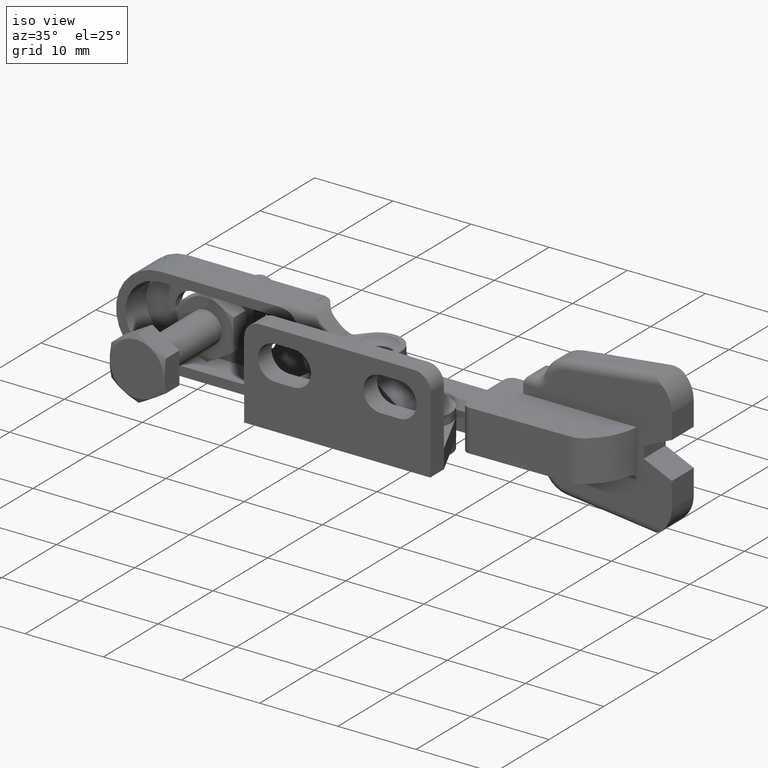
[diagram: clean part render]
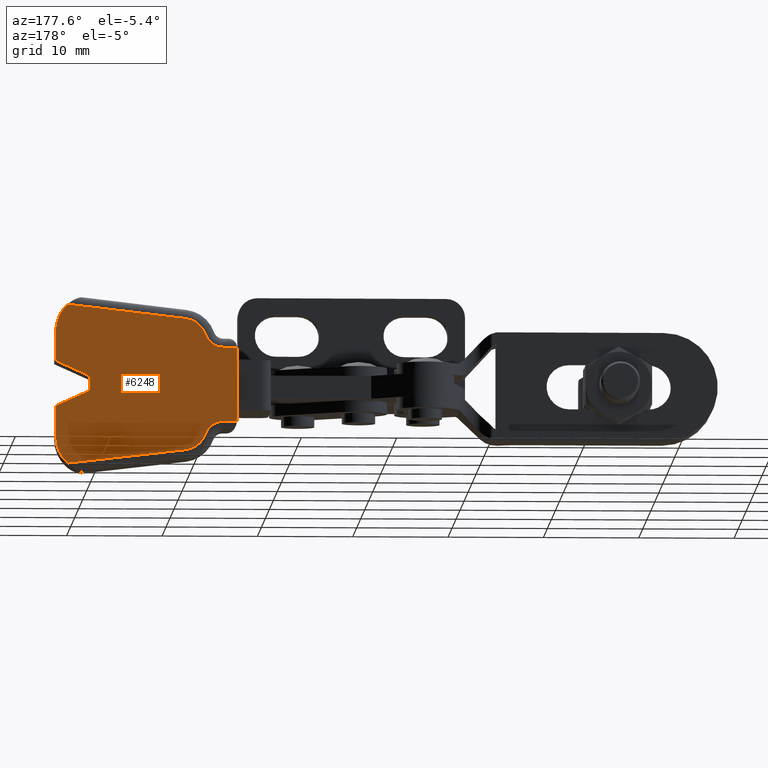
[diagram: tour spotlight — one face highlighted and labeled with its STEP entity id]
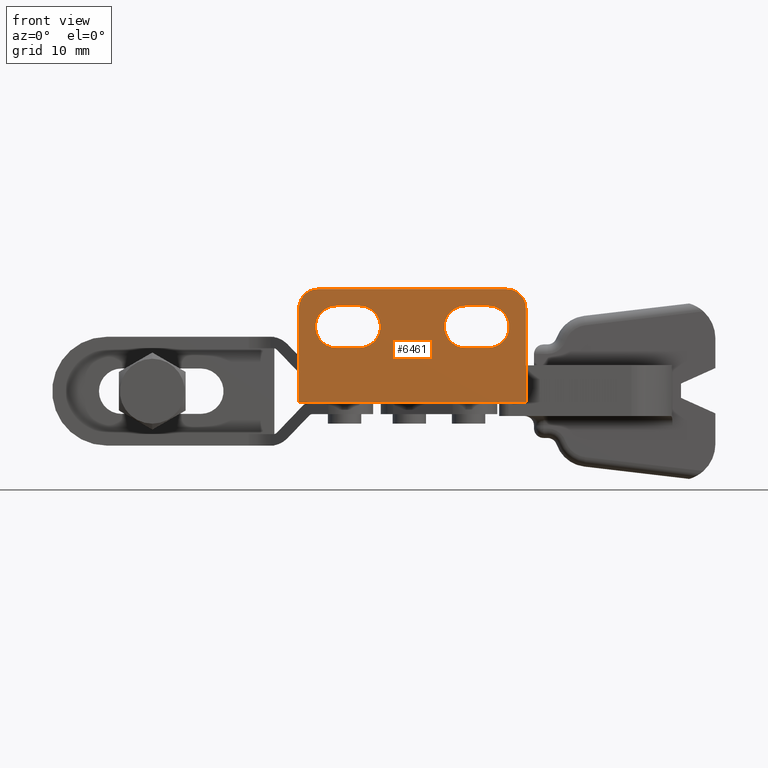
[diagram: tour spotlight — one face highlighted and labeled with its STEP entity id]
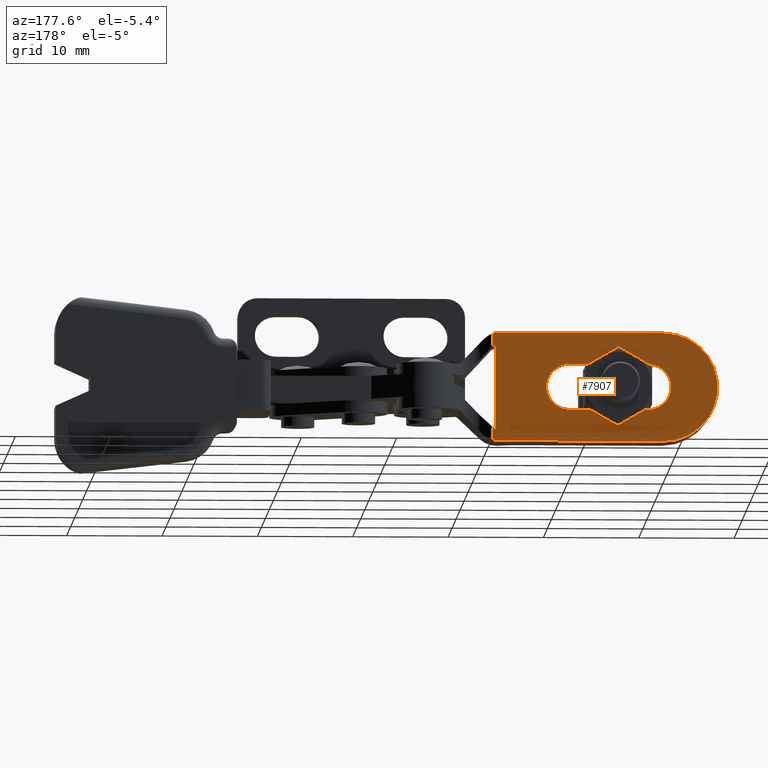
[diagram: tour spotlight — one face highlighted and labeled with its STEP entity id]
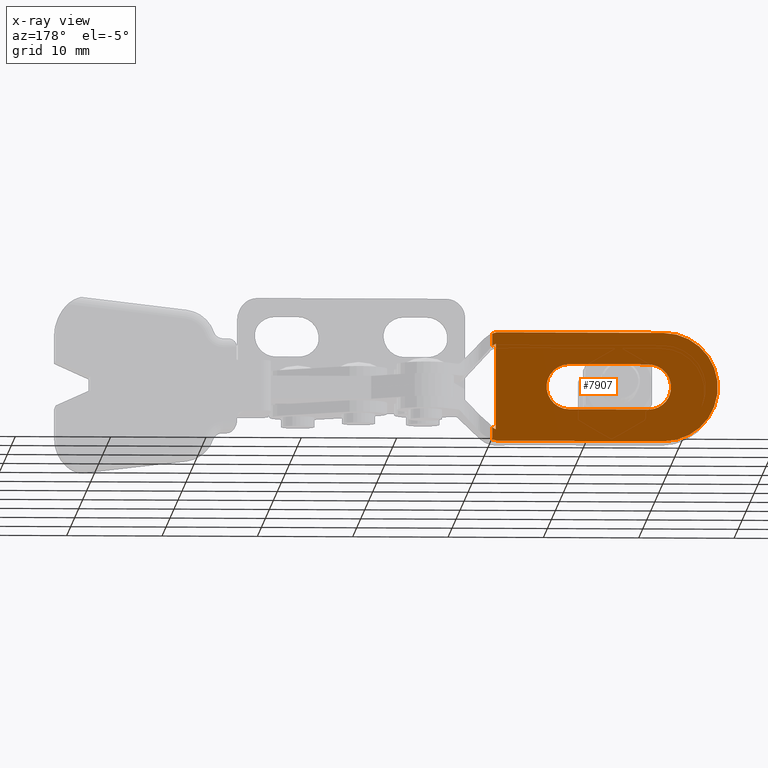
[diagram: x-ray of the same camera — body ghosted, this tour face saturated]
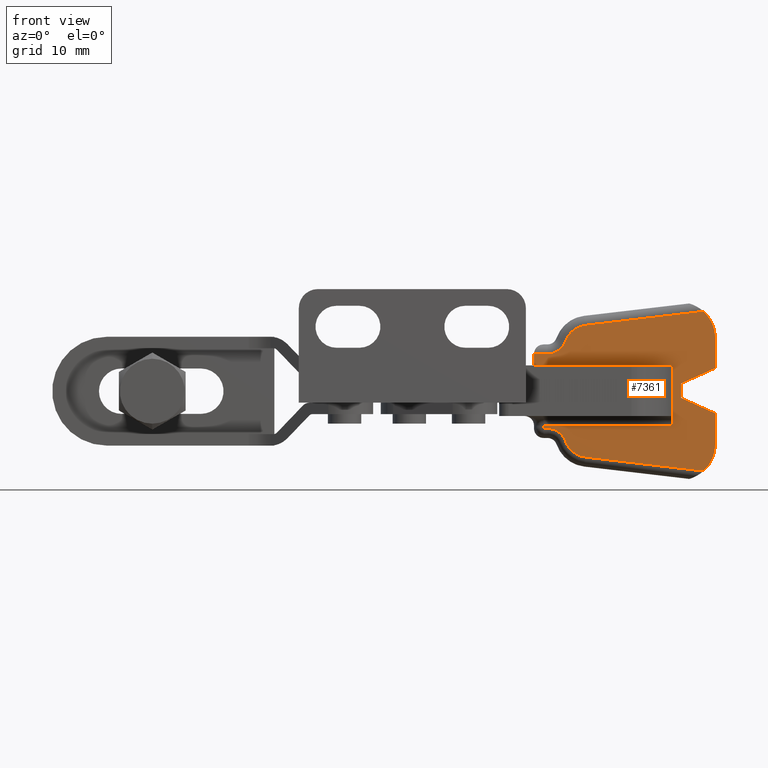
[diagram: tour spotlight — one face highlighted and labeled with its STEP entity id]
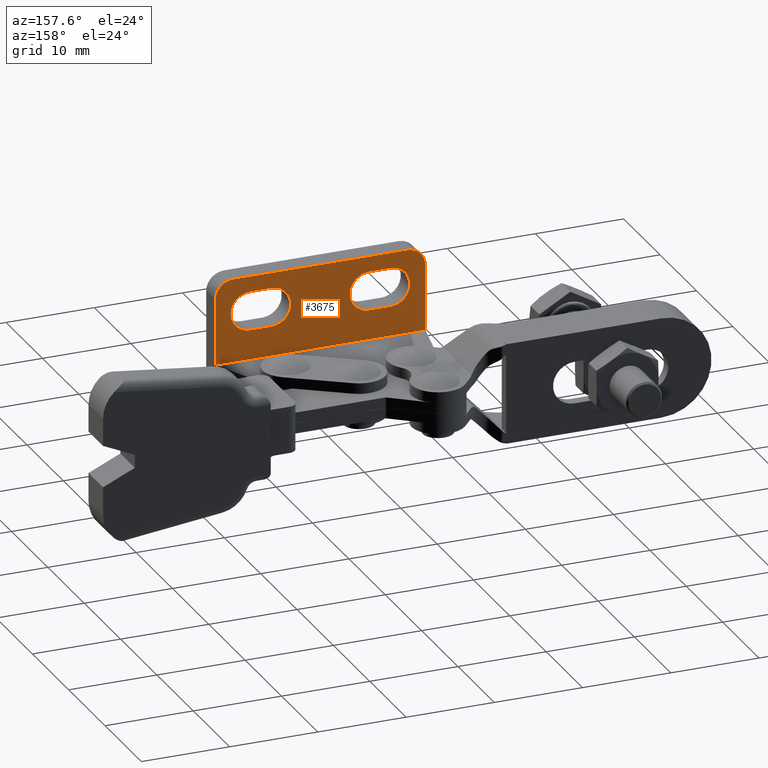
[diagram: tour spotlight — one face highlighted and labeled with its STEP entity id]
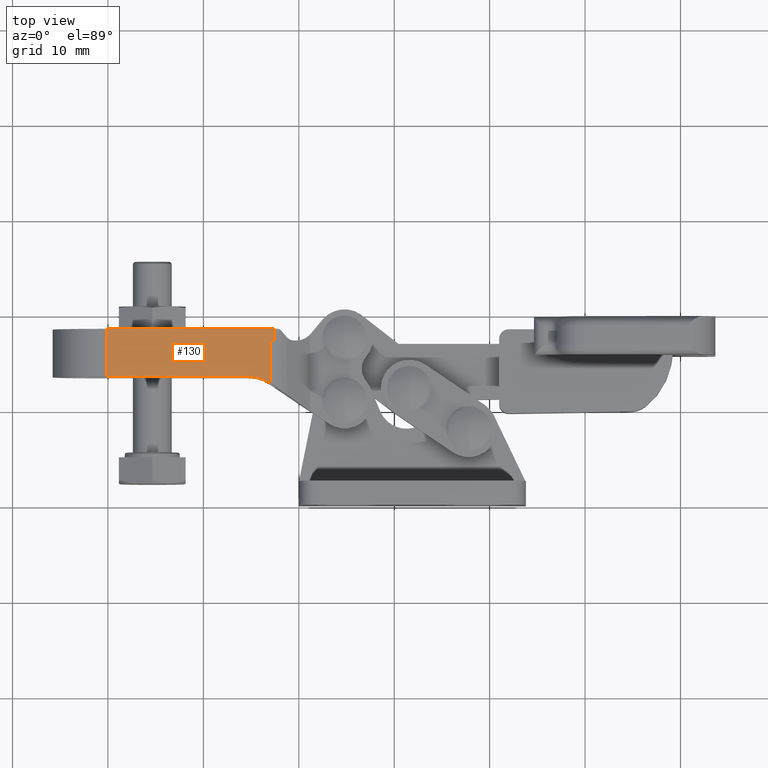
[diagram: tour spotlight — one face highlighted and labeled with its STEP entity id]
A machine part: a face-by-face anatomy tour. The part has 278 B-rep faces; the first image is the clean iso view, then the 6 largest visible faces are spotlighted one at a time (largest first), each with its STEP entity span.

Face 1 — auxiliary view, entity #6248. In plain terms, the highlighted planar face has unit normal (-0, 1, -0).
Definition (entity closure, byte-faithful):
#232 = VECTOR ( 'NONE', #5092, 1000.000000000000200 ) ;
#336 = VERTEX_POINT ( 'NONE', #4346 ) ;
#415 = AXIS2_PLACEMENT_3D ( 'NONE', #8643, #4572, #7417 ) ;
#550 = AXIS2_PLACEMENT_3D ( 'NONE', #4530, #9856, #5324 ) ;
#586 = VERTEX_POINT ( 'NONE', #6302 ) ;
#591 = ORIENTED_EDGE ( 'NONE', *, *, #4232, .T. ) ;
#620 = LINE ( 'NONE', #5163, #232 ) ;
#727 = CARTESIAN_POINT ( 'NONE',  ( 43.65762374685328200, 19.80011718915005400, 2.423330801643990300 ) ) ;
#939 = EDGE_CURVE ( 'NONE', #5731, #586, #7251, .T. ) ;
#969 = EDGE_CURVE ( 'NONE', #586, #7679, #7128, .T. ) ;
#1075 = EDGE_CURVE ( 'NONE', #2685, #6825, #3270, .T. ) ;
#1137 = LINE ( 'NONE', #2432, #2814 ) ;
#1200 = ORIENTED_EDGE ( 'NONE', *, *, #939, .F. ) ;
#1214 = VERTEX_POINT ( 'NONE', #5290 ) ;
#1227 = EDGE_LOOP ( 'NONE', ( #4151, #4502, #1200, #4282, #8874, #9113, #7565, #6956, #1400, #5713, #4006, #1717, #8035, #591, #4870, #7209 ) ) ;
#1400 = ORIENTED_EDGE ( 'NONE', *, *, #2355, .T. ) ;
#1433 = DIRECTION ( 'NONE',  ( -0.9931506043185482900, -2.931784242392111300E-006, 0.1168412475674016200 ) ) ;
#1487 = CIRCLE ( 'NONE', #550, 3.799388116624916400 ) ;
#1587 = VERTEX_POINT ( 'NONE', #9292 ) ;
#1654 = VECTOR ( 'NONE', #5250, 1000.000000000000000 ) ;
#1717 = ORIENTED_EDGE ( 'NONE', *, *, #1075, .F. ) ;
#1720 = CARTESIAN_POINT ( 'NONE',  ( 43.65762374685328200, 19.80011718915004300, -2.323330801644011100 ) ) ;
#1814 = VECTOR ( 'NONE', #1433, 1000.000000000000200 ) ;
#2207 = EDGE_CURVE ( 'NONE', #9692, #5878, #5039, .T. ) ;
#2355 = EDGE_CURVE ( 'NONE', #6122, #3715, #6047, .T. ) ;
#2366 = AXIS2_PLACEMENT_3D ( 'NONE', #5228, #2968, #8318 ) ;
#2410 = EDGE_CURVE ( 'NONE', #5878, #336, #5467, .T. ) ;
#2432 = CARTESIAN_POINT ( 'NONE',  ( 11.58572876797744800, 19.80002251279793100, 3.900000000000053200 ) ) ;
#2499 = AXIS2_PLACEMENT_3D ( 'NONE', #6185, #6175, #6167 ) ;
#2533 = EDGE_CURVE ( 'NONE', #2685, #1587, #3909, .T. ) ;
#2685 = VERTEX_POINT ( 'NONE', #5542 ) ;
#2725 = DIRECTION ( 'NONE',  ( 0.9999999999956428200, 2.952003684069184500E-006, -1.368455531567203500E-045 ) ) ;
#2739 = VECTOR ( 'NONE', #6643, 1000.000000000000000 ) ;
#2779 = LINE ( 'NONE', #9721, #7452 ) ;
#2814 = VECTOR ( 'NONE', #2725, 1000.000000000000100 ) ;
#2847 = LINE ( 'NONE', #4449, #1814 ) ;
#2932 = EDGE_CURVE ( 'NONE', #7679, #9692, #8482, .T. ) ;
#2968 = DIRECTION ( 'NONE',  ( -2.952003684069184500E-006, 0.9999999999956428200, -3.462431052187105000E-015 ) ) ;
#3095 = DIRECTION ( 'NONE',  ( -2.952003684069184900E-006, 0.9999999999956429300, -3.462431052187104200E-015 ) ) ;
#3270 = CIRCLE ( 'NONE', #6408, 2.000000000000000000 ) ;
#3534 = VECTOR ( 'NONE', #4617, 1000.000000000000000 ) ;
#3543 = CARTESIAN_POINT ( 'NONE',  ( 24.64796999124006000, 19.80006107258214200, 3.900000000000053200 ) ) ;
#3650 = DIRECTION ( 'NONE',  ( -1.022110922189188000E-020, 3.462431052172019200E-015, 1.000000000000000000 ) ) ;
#3715 = VERTEX_POINT ( 'NONE', #4922 ) ;
#3750 = CARTESIAN_POINT ( 'NONE',  ( 43.65762374685328200, 19.80011718915002900, -5.544542924371188300 ) ) ;
#3860 = DIRECTION ( 'NONE',  ( 0.9119215051711329100, 2.691995644282567700E-006, 0.4103646773287979400 ) ) ;
#3909 = CIRCLE ( 'NONE', #2499, 2.499999999999994200 ) ;
#3947 = EDGE_CURVE ( 'NONE', #4185, #6825, #1137, .T. ) ;
#4006 = ORIENTED_EDGE ( 'NONE', *, *, #3947, .T. ) ;
#4017 = CARTESIAN_POINT ( 'NONE',  ( 45.05022196541609200, 19.80012130010513300, 3.049999999999989200 ) ) ;
#4151 = ORIENTED_EDGE ( 'NONE', *, *, #2932, .F. ) ;
#4185 = VERTEX_POINT ( 'NONE', #3543 ) ;
#4232 = EDGE_CURVE ( 'NONE', #1587, #336, #620, .T. ) ;
#4282 = ORIENTED_EDGE ( 'NONE', *, *, #7615, .F. ) ;
#4346 = CARTESIAN_POINT ( 'NONE',  ( 42.40773668811614500, 19.80011349947887600, 8.361108662754610100 ) ) ;
#4393 = VECTOR ( 'NONE', #3860, 1000.000000000000100 ) ;
#4449 = CARTESIAN_POINT ( 'NONE',  ( 10.89702672596808100, 19.80002047974693400, -4.653967357104924000 ) ) ;
#4502 = ORIENTED_EDGE ( 'NONE', *, *, #969, .F. ) ;
#4530 = CARTESIAN_POINT ( 'NONE',  ( 39.85823563024492000, 19.80010597334231200, -5.544542924371188300 ) ) ;
#4572 = DIRECTION ( 'NONE',  ( 2.952003684069184900E-006, -0.9999999999956429300, 3.462431052187104200E-015 ) ) ;
#4585 = DIRECTION ( 'NONE',  ( -2.952003684069184900E-006, 0.9999999999956429300, -3.462431052187104200E-015 ) ) ;
#4617 = DIRECTION ( 'NONE',  ( -1.024182018384967600E-020, 3.469446951938498400E-015, 1.000000000000000000 ) ) ;
#4725 = LINE ( 'NONE', #8918, #2739 ) ;
#4870 = ORIENTED_EDGE ( 'NONE', *, *, #2410, .F. ) ;
#4922 = CARTESIAN_POINT ( 'NONE',  ( 24.64796999124006000, 19.80006107258211400, -3.900001042854670100 ) ) ;
#4924 = VERTEX_POINT ( 'NONE', #5210 ) ;
#5039 = LINE ( 'NONE', #5211, #1654 ) ;
#5049 = CARTESIAN_POINT ( 'NONE',  ( 26.06744254306723400, 19.80006526287031900, -3.900001042854670100 ) ) ;
#5092 = DIRECTION ( 'NONE',  ( 0.9931506043185482900, 2.931784243201220500E-006, 0.1168412475674015400 ) ) ;
#5163 = CARTESIAN_POINT ( 'NONE',  ( 11.17552514049607700, 19.80002130187531500, 4.686730833606689300 ) ) ;
#5210 = CARTESIAN_POINT ( 'NONE',  ( 27.95641196699796200, 19.80007083911501200, -5.242890309854733900 ) ) ;
#5211 = CARTESIAN_POINT ( 'NONE',  ( 43.65762374685328200, 19.80011718915006800, 5.543854091016919000 ) ) ;
#5228 = CARTESIAN_POINT ( 'NONE',  ( 11.58572876797744800, 19.80002251279792000, 1.199999999999971500 ) ) ;
#5250 = DIRECTION ( 'NONE',  ( -1.016017210296498000E-020, 3.441788422470882100E-015, 1.000000000000000000 ) ) ;
#5290 = CARTESIAN_POINT ( 'NONE',  ( 42.40814382589226700, 19.80011350068069100, -8.361157604171120600 ) ) ;
#5324 = DIRECTION ( 'NONE',  ( 0.0000000000000000000, 3.652637577900941900E-015, 1.000000000000000000 ) ) ;
#5467 = CIRCLE ( 'NONE', #415, 3.799999734034159800 ) ;
#5542 = CARTESIAN_POINT ( 'NONE',  ( 27.95641196699796200, 19.80007083911504800, 5.242889267000117000 ) ) ;
#5599 = EDGE_CURVE ( 'NONE', #6195, #4924, #5665, .T. ) ;
#5665 = CIRCLE ( 'NONE', #6624, 2.499999999999993800 ) ;
#5666 = VECTOR ( 'NONE', #6250, 999.9999999999998900 ) ;
#5713 = ORIENTED_EDGE ( 'NONE', *, *, #6692, .T. ) ;
#5731 = VERTEX_POINT ( 'NONE', #1720 ) ;
#5878 = VERTEX_POINT ( 'NONE', #9464 ) ;
#5945 = CARTESIAN_POINT ( 'NONE',  ( 30.02552062799413000, 19.80007694713139800, -6.904378404411997600 ) ) ;
#6047 = LINE ( 'NONE', #7987, #7535 ) ;
#6122 = VERTEX_POINT ( 'NONE', #5049 ) ;
#6127 = DIRECTION ( 'NONE',  ( 0.0000000000000000000, 3.469446951953614200E-015, 1.000000000000000000 ) ) ;
#6167 = DIRECTION ( 'NONE',  ( 0.0000000000000000000, 2.775557561562897700E-015, 1.000000000000000000 ) ) ;
#6175 = DIRECTION ( 'NONE',  ( -2.952003684069184900E-006, 0.9999999999956429300, -3.462431052187104200E-015 ) ) ;
#6185 = CARTESIAN_POINT ( 'NONE',  ( 30.31762374691136900, 19.80007780942092000, 4.421500850750198300 ) ) ;
#6195 = VERTEX_POINT ( 'NONE', #5945 ) ;
#6248 = ADVANCED_FACE ( 'NONE', ( #6866 ), #7585, .T. ) ;
#6250 = DIRECTION ( 'NONE',  ( -0.9119215051711330200, -2.691995641435092000E-006, 0.4103646773287979400 ) ) ;
#6302 = CARTESIAN_POINT ( 'NONE',  ( 40.05022196543789200, 19.80010654008669500, -0.7000000000000102800 ) ) ;
#6321 = EDGE_CURVE ( 'NONE', #6122, #4924, #8673, .T. ) ;
#6408 = AXIS2_PLACEMENT_3D ( 'NONE', #6833, #6823, #6127 ) ;
#6483 = AXIS2_PLACEMENT_3D ( 'NONE', #7701, #3095, #8450 ) ;
#6624 = AXIS2_PLACEMENT_3D ( 'NONE', #9224, #4585, #9895 ) ;
#6643 = DIRECTION ( 'NONE',  ( -1.016017210296498000E-020, 3.441788422470882100E-015, 1.000000000000000000 ) ) ;
#6692 = EDGE_CURVE ( 'NONE', #3715, #4185, #2779, .T. ) ;
#6784 = EDGE_CURVE ( 'NONE', #1214, #9589, #1487, .T. ) ;
#6823 = DIRECTION ( 'NONE',  ( -2.952003684069184900E-006, 0.9999999999956429300, -3.462431052187104200E-015 ) ) ;
#6825 = VERTEX_POINT ( 'NONE', #8440 ) ;
#6833 = CARTESIAN_POINT ( 'NONE',  ( 26.06744254306723400, 19.80006526287035100, 5.900000000000052800 ) ) ;
#6866 = FACE_OUTER_BOUND ( 'NONE', #1227, .T. ) ;
#6956 = ORIENTED_EDGE ( 'NONE', *, *, #6321, .F. ) ;
#7128 = LINE ( 'NONE', #8578, #3534 ) ;
#7209 = ORIENTED_EDGE ( 'NONE', *, *, #2207, .F. ) ;
#7251 = LINE ( 'NONE', #9027, #5666 ) ;
#7417 = DIRECTION ( 'NONE',  ( 0.0000000000000000000, 3.652049678719714900E-015, 1.000000000000000000 ) ) ;
#7452 = VECTOR ( 'NONE', #3650, 1000.000000000000000 ) ;
#7535 = VECTOR ( 'NONE', #8098, 1000.000000000000100 ) ;
#7565 = ORIENTED_EDGE ( 'NONE', *, *, #5599, .T. ) ;
#7585 = PLANE ( 'NONE',  #2366 ) ;
#7615 = EDGE_CURVE ( 'NONE', #9589, #5731, #4725, .T. ) ;
#7679 = VERTEX_POINT ( 'NONE', #9703 ) ;
#7701 = CARTESIAN_POINT ( 'NONE',  ( 26.06744254306723400, 19.80006526287031200, -5.900001042854669600 ) ) ;
#7987 = CARTESIAN_POINT ( 'NONE',  ( 11.58572876797744800, 19.80002251279790200, -3.900001042854670100 ) ) ;
#8035 = ORIENTED_EDGE ( 'NONE', *, *, #2533, .T. ) ;
#8098 = DIRECTION ( 'NONE',  ( -0.9999999999956428200, -2.952003684069184500E-006, 1.368455531567203500E-045 ) ) ;
#8318 = DIRECTION ( 'NONE',  ( -1.022110922189187700E-020, 3.462431052172018800E-015, 1.000000000000000000 ) ) ;
#8440 = CARTESIAN_POINT ( 'NONE',  ( 26.06744254306723400, 19.80006526287034400, 3.900000000000053200 ) ) ;
#8450 = DIRECTION ( 'NONE',  ( 0.0000000000000000000, 3.469446951953615000E-015, 1.000000000000000000 ) ) ;
#8482 = LINE ( 'NONE', #4017, #4393 ) ;
#8578 = CARTESIAN_POINT ( 'NONE',  ( 40.05022196543789200, 19.80010654008670200, 0.7999999999999897200 ) ) ;
#8643 = CARTESIAN_POINT ( 'NONE',  ( 39.85762401283567900, 19.80010597153685100, 5.543854091016919000 ) ) ;
#8673 = CIRCLE ( 'NONE', #6483, 1.999999999999999600 ) ;
#8874 = ORIENTED_EDGE ( 'NONE', *, *, #6784, .F. ) ;
#8918 = CARTESIAN_POINT ( 'NONE',  ( 43.65762374685328200, 19.80011718915006800, 5.543854091016919000 ) ) ;
#9027 = CARTESIAN_POINT ( 'NONE',  ( 45.05022196541609200, 19.80012130010511100, -2.950000000000009500 ) ) ;
#9113 = ORIENTED_EDGE ( 'NONE', *, *, #9466, .T. ) ;
#9224 = CARTESIAN_POINT ( 'NONE',  ( 30.31762374691136900, 19.80007780942089100, -4.421501893604816000 ) ) ;
#9292 = CARTESIAN_POINT ( 'NONE',  ( 30.02552062799412300, 19.80007694713144400, 6.904377361557380700 ) ) ;
#9464 = CARTESIAN_POINT ( 'NONE',  ( 43.65762374685328200, 19.80011718915006800, 5.543854091016919000 ) ) ;
#9466 = EDGE_CURVE ( 'NONE', #1214, #6195, #2847, .T. ) ;
#9589 = VERTEX_POINT ( 'NONE', #3750 ) ;
#9692 = VERTEX_POINT ( 'NONE', #727 ) ;
#9703 = CARTESIAN_POINT ( 'NONE',  ( 40.05022196543789200, 19.80010654008670200, 0.7999999999999897200 ) ) ;
#9721 = CARTESIAN_POINT ( 'NONE',  ( 24.64796999124006000, 19.80006107258213500, 1.199999999999971500 ) ) ;
#9856 = DIRECTION ( 'NONE',  ( 2.952003684069184900E-006, -0.9999999999956429300, 3.462431052187104200E-015 ) ) ;
#9895 = DIRECTION ( 'NONE',  ( 0.0000000000000000000, 2.775557561562898500E-015, 1.000000000000000000 ) ) ;

Face 2 — front view, entity #6461. In plain terms, the highlighted planar face has unit normal (0, 1, 0).
Definition (entity closure, byte-faithful):
#62 = ORIENTED_EDGE ( 'NONE', *, *, #7988, .F. ) ;
#197 = CARTESIAN_POINT ( 'NONE',  ( -1.387778780781445700E-014, 0.0000000000000000000, 9.899999999999964800 ) ) ;
#306 = CIRCLE ( 'NONE', #8152, 2.200000000000007300 ) ;
#349 = VERTEX_POINT ( 'NONE', #4484 ) ;
#403 = DIRECTION ( 'NONE',  ( 0.0000000000000000000, 1.000000000000000000, 0.0000000000000000000 ) ) ;
#516 = CARTESIAN_POINT ( 'NONE',  ( 6.350000000000008500, 0.0000000000000000000, 10.15000000000002000 ) ) ;
#556 = CARTESIAN_POINT ( 'NONE',  ( 17.45000000000003500, 0.0000000000000000000, 5.749999999999976900 ) ) ;
#972 = DIRECTION ( 'NONE',  ( -1.401796748264091700E-015, -0.0000000000000000000, 1.000000000000000000 ) ) ;
#1336 = VERTEX_POINT ( 'NONE', #9152 ) ;
#1343 = ORIENTED_EDGE ( 'NONE', *, *, #7095, .T. ) ;
#1402 = DIRECTION ( 'NONE',  ( 3.154042683594206300E-015, 0.0000000000000000000, -1.000000000000000000 ) ) ;
#1408 = VERTEX_POINT ( 'NONE', #2258 ) ;
#1650 = DIRECTION ( 'NONE',  ( 0.0000000000000000000, 0.0000000000000000000, 1.000000000000000000 ) ) ;
#1696 = ORIENTED_EDGE ( 'NONE', *, *, #8413, .T. ) ;
#1725 = CARTESIAN_POINT ( 'NONE',  ( 17.45000000000003500, 0.0000000000000000000, 5.749999999999976900 ) ) ;
#1771 = CIRCLE ( 'NONE', #6011, 2.200000000000007300 ) ;
#1774 = PLANE ( 'NONE',  #6279 ) ;
#1879 = CARTESIAN_POINT ( 'NONE',  ( 3.949999999999967300, 0.0000000000000000000, 10.14999999999999100 ) ) ;
#1931 = DIRECTION ( 'NONE',  ( -1.000000000000000000, -0.0000000000000000000, -0.0000000000000000000 ) ) ;
#2106 = FACE_BOUND ( 'NONE', #7718, .T. ) ;
#2182 = ORIENTED_EDGE ( 'NONE', *, *, #8036, .T. ) ;
#2233 = VERTEX_POINT ( 'NONE', #5434 ) ;
#2258 = CARTESIAN_POINT ( 'NONE',  ( 1.999999999999988000, 0.0000000000000000000, 11.89999999999996700 ) ) ;
#2387 = VECTOR ( 'NONE', #972, 1000.000000000000000 ) ;
#2402 = ORIENTED_EDGE ( 'NONE', *, *, #8684, .T. ) ;
#2511 = CARTESIAN_POINT ( 'NONE',  ( 21.80000000000002900, 0.0000000000000000000, 9.899999999999964800 ) ) ;
#2529 = ORIENTED_EDGE ( 'NONE', *, *, #7915, .F. ) ;
#2642 = DIRECTION ( 'NONE',  ( 0.0000000000000000000, 1.000000000000000000, 0.0000000000000000000 ) ) ;
#2648 = ORIENTED_EDGE ( 'NONE', *, *, #8188, .T. ) ;
#2699 = CARTESIAN_POINT ( 'NONE',  ( 6.350000000000008500, 0.0000000000000000000, 7.950000000000012600 ) ) ;
#2979 = DIRECTION ( 'NONE',  ( 0.0000000000000000000, 1.000000000000000000, 0.0000000000000000000 ) ) ;
#3005 = AXIS2_PLACEMENT_3D ( 'NONE', #9242, #4605, #1650 ) ;
#3080 = DIRECTION ( 'NONE',  ( 1.000000000000000000, 0.0000000000000000000, 0.0000000000000000000 ) ) ;
#3089 = LINE ( 'NONE', #8121, #8980 ) ;
#3249 = DIRECTION ( 'NONE',  ( 0.0000000000000000000, 1.000000000000000000, 0.0000000000000000000 ) ) ;
#3285 = DIRECTION ( 'NONE',  ( 0.0000000000000000000, -0.0000000000000000000, 1.000000000000000000 ) ) ;
#3391 = VERTEX_POINT ( 'NONE', #8934 ) ;
#3414 = VERTEX_POINT ( 'NONE', #4216 ) ;
#3475 = DIRECTION ( 'NONE',  ( 0.0000000000000000000, 0.0000000000000000000, 1.000000000000000000 ) ) ;
#3495 = ORIENTED_EDGE ( 'NONE', *, *, #7741, .F. ) ;
#3528 = EDGE_LOOP ( 'NONE', ( #8153, #3661, #5370, #3495, #2529, #62 ) ) ;
#3571 = VERTEX_POINT ( 'NONE', #5191 ) ;
#3572 = VERTEX_POINT ( 'NONE', #1879 ) ;
#3661 = ORIENTED_EDGE ( 'NONE', *, *, #7367, .F. ) ;
#3789 = VERTEX_POINT ( 'NONE', #4305 ) ;
#3873 = VERTEX_POINT ( 'NONE', #3878 ) ;
#3878 = CARTESIAN_POINT ( 'NONE',  ( -1.387778780781445700E-014, 0.0000000000000000000, 9.899999999999964800 ) ) ;
#3923 = DIRECTION ( 'NONE',  ( 1.000000000000000000, 0.0000000000000000000, 0.0000000000000000000 ) ) ;
#4020 = AXIS2_PLACEMENT_3D ( 'NONE', #7841, #3249, #8585 ) ;
#4025 = LINE ( 'NONE', #8262, #9844 ) ;
#4089 = VERTEX_POINT ( 'NONE', #516 ) ;
#4197 = FACE_BOUND ( 'NONE', #7257, .T. ) ;
#4216 = CARTESIAN_POINT ( 'NONE',  ( 19.85000000000004800, 0.0000000000000000000, 10.15000000000002000 ) ) ;
#4305 = CARTESIAN_POINT ( 'NONE',  ( 23.80000000000002900, 0.0000000000000000000, 9.899999999999964800 ) ) ;
#4324 = CARTESIAN_POINT ( 'NONE',  ( 19.85000000000004800, 0.0000000000000000000, 5.749999999999976900 ) ) ;
#4354 = CARTESIAN_POINT ( 'NONE',  ( 17.45000000000003500, 0.0000000000000000000, 10.14999999999999100 ) ) ;
#4484 = CARTESIAN_POINT ( 'NONE',  ( 21.80000000000002900, 0.0000000000000000000, 11.89999999999996700 ) ) ;
#4605 = DIRECTION ( 'NONE',  ( 0.0000000000000000000, 1.000000000000000000, 0.0000000000000000000 ) ) ;
#4678 = CARTESIAN_POINT ( 'NONE',  ( 1.999999999999988000, 0.0000000000000000000, 11.89999999999996700 ) ) ;
#4981 = CARTESIAN_POINT ( 'NONE',  ( 19.85000000000004800, 0.0000000000000000000, 7.950000000000012600 ) ) ;
#5191 = CARTESIAN_POINT ( 'NONE',  ( 3.949999999999967300, 0.0000000000000000000, 5.749999999999976900 ) ) ;
#5370 = ORIENTED_EDGE ( 'NONE', *, *, #7458, .F. ) ;
#5434 = CARTESIAN_POINT ( 'NONE',  ( 0.0000000000000000000, 0.0000000000000000000, 0.0000000000000000000 ) ) ;
#5479 = VECTOR ( 'NONE', #5536, 1000.000000000000000 ) ;
#5536 = DIRECTION ( 'NONE',  ( -1.000000000000000000, -0.0000000000000000000, -0.0000000000000000000 ) ) ;
#5561 = CIRCLE ( 'NONE', #7323, 2.200000000000007300 ) ;
#5617 = LINE ( 'NONE', #4678, #9436 ) ;
#5738 = LINE ( 'NONE', #7262, #9753 ) ;
#5792 = DIRECTION ( 'NONE',  ( 0.0000000000000000000, 0.0000000000000000000, 1.000000000000000000 ) ) ;
#5946 = CIRCLE ( 'NONE', #3005, 2.000000000000001800 ) ;
#6011 = AXIS2_PLACEMENT_3D ( 'NONE', #2699, #8051, #3475 ) ;
#6279 = AXIS2_PLACEMENT_3D ( 'NONE', #2511, #7837, #3285 ) ;
#6399 = CARTESIAN_POINT ( 'NONE',  ( 17.45000000000003500, 0.0000000000000000000, 10.14999999999999100 ) ) ;
#6461 = ADVANCED_FACE ( 'NONE', ( #4197, #6868, #2106 ), #1774, .F. ) ;
#6555 = EDGE_CURVE ( 'NONE', #3571, #3572, #5561, .T. ) ;
#6826 = EDGE_CURVE ( 'NONE', #3572, #4089, #8172, .T. ) ;
#6868 = FACE_OUTER_BOUND ( 'NONE', #3528, .T. ) ;
#7019 = EDGE_CURVE ( 'NONE', #4089, #1336, #1771, .T. ) ;
#7082 = ORIENTED_EDGE ( 'NONE', *, *, #6826, .T. ) ;
#7095 = EDGE_CURVE ( 'NONE', #1336, #3571, #3089, .T. ) ;
#7159 = EDGE_CURVE ( 'NONE', #3873, #1408, #8243, .T. ) ;
#7171 = DIRECTION ( 'NONE',  ( 1.000000000000000000, 0.0000000000000000000, 0.0000000000000000000 ) ) ;
#7247 = CARTESIAN_POINT ( 'NONE',  ( 3.949999999999995300, 0.0000000000000000000, 7.950000000000012600 ) ) ;
#7257 = EDGE_LOOP ( 'NONE', ( #9105, #7082, #8993, #1343 ) ) ;
#7262 = CARTESIAN_POINT ( 'NONE',  ( 0.0000000000000000000, 0.0000000000000000000, 0.0000000000000000000 ) ) ;
#7323 = AXIS2_PLACEMENT_3D ( 'NONE', #7247, #2642, #7996 ) ;
#7367 = EDGE_CURVE ( 'NONE', #2233, #3873, #8235, .T. ) ;
#7405 = AXIS2_PLACEMENT_3D ( 'NONE', #7594, #2979, #8337 ) ;
#7410 = DIRECTION ( 'NONE',  ( -1.000000000000000000, -0.0000000000000000000, -0.0000000000000000000 ) ) ;
#7458 = EDGE_CURVE ( 'NONE', #3391, #2233, #5738, .T. ) ;
#7594 = CARTESIAN_POINT ( 'NONE',  ( 1.999999999999988000, 0.0000000000000000000, 9.899999999999964800 ) ) ;
#7678 = VERTEX_POINT ( 'NONE', #4354 ) ;
#7718 = EDGE_LOOP ( 'NONE', ( #2182, #2648, #1696, #2402 ) ) ;
#7741 = EDGE_CURVE ( 'NONE', #3789, #3391, #4025, .T. ) ;
#7837 = DIRECTION ( 'NONE',  ( 0.0000000000000000000, 1.000000000000000000, 0.0000000000000000000 ) ) ;
#7841 = CARTESIAN_POINT ( 'NONE',  ( 17.45000000000006300, 0.0000000000000000000, 7.950000000000012600 ) ) ;
#7895 = CIRCLE ( 'NONE', #4020, 2.200000000000007300 ) ;
#7915 = EDGE_CURVE ( 'NONE', #349, #3789, #5946, .T. ) ;
#7988 = EDGE_CURVE ( 'NONE', #1408, #349, #5617, .T. ) ;
#7996 = DIRECTION ( 'NONE',  ( 0.0000000000000000000, 0.0000000000000000000, 1.000000000000000000 ) ) ;
#8036 = EDGE_CURVE ( 'NONE', #9334, #7678, #7895, .T. ) ;
#8051 = DIRECTION ( 'NONE',  ( 0.0000000000000000000, 1.000000000000000000, 0.0000000000000000000 ) ) ;
#8121 = CARTESIAN_POINT ( 'NONE',  ( 3.949999999999967300, 0.0000000000000000000, 5.749999999999976900 ) ) ;
#8152 = AXIS2_PLACEMENT_3D ( 'NONE', #4981, #403, #5792 ) ;
#8153 = ORIENTED_EDGE ( 'NONE', *, *, #7159, .F. ) ;
#8172 = LINE ( 'NONE', #9233, #9568 ) ;
#8188 = EDGE_CURVE ( 'NONE', #7678, #3414, #9219, .T. ) ;
#8235 = LINE ( 'NONE', #197, #2387 ) ;
#8243 = CIRCLE ( 'NONE', #7405, 2.000000000000001800 ) ;
#8262 = CARTESIAN_POINT ( 'NONE',  ( 23.80000000000002900, 0.0000000000000000000, 9.899999999999964800 ) ) ;
#8337 = DIRECTION ( 'NONE',  ( 0.0000000000000000000, 0.0000000000000000000, 1.000000000000000000 ) ) ;
#8413 = EDGE_CURVE ( 'NONE', #3414, #9239, #306, .T. ) ;
#8585 = DIRECTION ( 'NONE',  ( 0.0000000000000000000, 0.0000000000000000000, 1.000000000000000000 ) ) ;
#8684 = EDGE_CURVE ( 'NONE', #9239, #9334, #9543, .T. ) ;
#8934 = CARTESIAN_POINT ( 'NONE',  ( 23.80000000000006100, 0.0000000000000000000, 0.0000000000000000000 ) ) ;
#8972 = VECTOR ( 'NONE', #7171, 1000.000000000000000 ) ;
#8980 = VECTOR ( 'NONE', #7410, 1000.000000000000000 ) ;
#8993 = ORIENTED_EDGE ( 'NONE', *, *, #7019, .T. ) ;
#9105 = ORIENTED_EDGE ( 'NONE', *, *, #6555, .T. ) ;
#9152 = CARTESIAN_POINT ( 'NONE',  ( 6.350000000000008500, 0.0000000000000000000, 5.749999999999976900 ) ) ;
#9219 = LINE ( 'NONE', #6399, #8972 ) ;
#9233 = CARTESIAN_POINT ( 'NONE',  ( 3.949999999999967300, 0.0000000000000000000, 10.14999999999999100 ) ) ;
#9239 = VERTEX_POINT ( 'NONE', #4324 ) ;
#9242 = CARTESIAN_POINT ( 'NONE',  ( 21.80000000000002900, 0.0000000000000000000, 9.899999999999964800 ) ) ;
#9334 = VERTEX_POINT ( 'NONE', #556 ) ;
#9436 = VECTOR ( 'NONE', #3923, 1000.000000000000000 ) ;
#9543 = LINE ( 'NONE', #1725, #5479 ) ;
#9568 = VECTOR ( 'NONE', #3080, 1000.000000000000000 ) ;
#9753 = VECTOR ( 'NONE', #1931, 1000.000000000000000 ) ;
#9844 = VECTOR ( 'NONE', #1402, 1000.000000000000000 ) ;

Face 3 — auxiliary view, entity #7907. An x-ray twin of the same camera follows (body ghosted, this face saturated) — the face is partly hidden behind the body. In plain terms, the highlighted planar face has unit normal (0, 1, 0).
Definition (entity closure, byte-faithful):
#27 = FACE_BOUND ( 'NONE', #91, .T. ) ;
#44 = DIRECTION ( 'NONE',  ( -1.000000000000000000, 0.0000000000000000000, 0.0000000000000000000 ) ) ;
#54 = CARTESIAN_POINT ( 'NONE',  ( -24.14000245664014000, 18.50000245742332800, -5.699999999999998400 ) ) ;
#91 = EDGE_LOOP ( 'NONE', ( #4508, #3866, #3326, #9512, #3592 ) ) ;
#165 = CIRCLE ( 'NONE', #1049, 2.380000000000000300 ) ;
#185 = CIRCLE ( 'NONE', #6513, 2.380000000000000300 ) ;
#382 = DIRECTION ( 'NONE',  ( 1.000000000000000000, -8.360113137237621000E-016, 0.0000000000000000000 ) ) ;
#468 = CARTESIAN_POINT ( 'NONE',  ( -18.56322818642262700, 18.50000245742332100, 2.380000000000000300 ) ) ;
#817 = EDGE_CURVE ( 'NONE', #6760, #8796, #4688, .T. ) ;
#888 = LINE ( 'NONE', #8137, #9193 ) ;
#917 = DIRECTION ( 'NONE',  ( 8.308272860745645600E-016, 1.000000000000000000, 0.0000000000000000000 ) ) ;
#943 = VECTOR ( 'NONE', #5072, 1000.000000000000100 ) ;
#1027 = CARTESIAN_POINT ( 'NONE',  ( -18.56322818642262700, 18.50000245742332100, 0.0000000000000000000 ) ) ;
#1049 = AXIS2_PLACEMENT_3D ( 'NONE', #8942, #8913, #8868 ) ;
#1055 = CIRCLE ( 'NONE', #5590, 2.500000000000061300 ) ;
#1233 = EDGE_CURVE ( 'NONE', #3312, #8561, #4187, .T. ) ;
#1252 = VERTEX_POINT ( 'NONE', #5579 ) ;
#1332 = CARTESIAN_POINT ( 'NONE',  ( -18.56322818642262700, 18.50000245742332100, -2.380000000000000300 ) ) ;
#1338 = DIRECTION ( 'NONE',  ( -1.000000000000000000, 1.387778780781422200E-015, 0.0000000000000000000 ) ) ;
#1434 = ORIENTED_EDGE ( 'NONE', *, *, #8110, .T. ) ;
#1444 = EDGE_CURVE ( 'NONE', #4367, #8655, #8161, .T. ) ;
#1498 = CIRCLE ( 'NONE', #5773, 2.380000000000000300 ) ;
#1566 = LINE ( 'NONE', #4689, #5358 ) ;
#1811 = CARTESIAN_POINT ( 'NONE',  ( -2.994981057761934900, 18.50000245742331000, -3.199999999999938000 ) ) ;
#1830 = VECTOR ( 'NONE', #5465, 1000.000000000000000 ) ;
#1846 = DIRECTION ( 'NONE',  ( -1.000000000000000000, 1.457750820148577100E-015, 0.0000000000000000000 ) ) ;
#1899 = LINE ( 'NONE', #54, #6650 ) ;
#2045 = AXIS2_PLACEMENT_3D ( 'NONE', #2349, #7705, #3097 ) ;
#2069 = CIRCLE ( 'NONE', #2045, 0.5000016941768487000 ) ;
#2284 = LINE ( 'NONE', #4349, #1830 ) ;
#2327 = EDGE_CURVE ( 'NONE', #3908, #5670, #888, .T. ) ;
#2349 = CARTESIAN_POINT ( 'NONE',  ( -2.653803877730544200, 18.50000245742331000, -3.999998305821864400 ) ) ;
#2360 = CARTESIAN_POINT ( 'NONE',  ( -2.216557231561475700, 18.50000245742331000, 5.575722278971932500 ) ) ;
#2513 = AXIS2_PLACEMENT_3D ( 'NONE', #9217, #4573, #9888 ) ;
#2541 = DIRECTION ( 'NONE',  ( -1.000000000000000000, 1.387778780781411800E-015, 0.0000000000000000000 ) ) ;
#2569 = ORIENTED_EDGE ( 'NONE', *, *, #4876, .F. ) ;
#2742 = LINE ( 'NONE', #9498, #4490 ) ;
#2818 = EDGE_CURVE ( 'NONE', #8561, #8655, #9001, .T. ) ;
#2838 = VERTEX_POINT ( 'NONE', #9697 ) ;
#2873 = DIRECTION ( 'NONE',  ( -8.308272860745645600E-016, -1.000000000000000000, -0.0000000000000000000 ) ) ;
#2880 = EDGE_CURVE ( 'NONE', #1252, #5670, #8761, .T. ) ;
#2917 = CARTESIAN_POINT ( 'NONE',  ( -2.216557231561475700, 18.50000245742331000, -5.575722278971903200 ) ) ;
#2921 = CARTESIAN_POINT ( 'NONE',  ( -2.563228186422624500, 18.50000245742331000, -4.491727640236451400 ) ) ;
#3058 = PLANE ( 'NONE',  #2513 ) ;
#3097 = DIRECTION ( 'NONE',  ( -1.000000000000000000, 0.0000000000000000000, 3.469435196280039100E-015 ) ) ;
#3179 = EDGE_CURVE ( 'NONE', #9355, #7276, #8474, .T. ) ;
#3209 = CARTESIAN_POINT ( 'NONE',  ( -2.563228186422624500, 18.50000245742331000, 5.700000000000003700 ) ) ;
#3231 = CARTESIAN_POINT ( 'NONE',  ( -2.563228186422624500, 18.50000245742331000, 4.491727640236742800 ) ) ;
#3274 = DIRECTION ( 'NONE',  ( -0.6922229206075389800, 5.751176904869704300E-016, 0.7216837452690539900 ) ) ;
#3306 = LINE ( 'NONE', #4338, #9279 ) ;
#3312 = VERTEX_POINT ( 'NONE', #9773 ) ;
#3326 = ORIENTED_EDGE ( 'NONE', *, *, #4719, .F. ) ;
#3389 = CARTESIAN_POINT ( 'NONE',  ( 0.4295056258059905000, 18.50000245742330700, -1.507777079392462500 ) ) ;
#3559 = ORIENTED_EDGE ( 'NONE', *, *, #4368, .F. ) ;
#3592 = ORIENTED_EDGE ( 'NONE', *, *, #4631, .F. ) ;
#3658 = DIRECTION ( 'NONE',  ( -1.000000000000000000, 0.0000000000000000000, -3.469435196280032800E-015 ) ) ;
#3672 = ORIENTED_EDGE ( 'NONE', *, *, #817, .T. ) ;
#3794 = EDGE_CURVE ( 'NONE', #5968, #5199, #3306, .T. ) ;
#3852 = ORIENTED_EDGE ( 'NONE', *, *, #7302, .F. ) ;
#3866 = ORIENTED_EDGE ( 'NONE', *, *, #3794, .F. ) ;
#3907 = DIRECTION ( 'NONE',  ( -1.000000000000000000, 8.308272860745644600E-016, -0.0000000000000000000 ) ) ;
#3908 = VERTEX_POINT ( 'NONE', #2917 ) ;
#3972 = CARTESIAN_POINT ( 'NONE',  ( -2.563228186422624500, 18.50000245742331000, -5.699999999999998400 ) ) ;
#4096 = CARTESIAN_POINT ( 'NONE',  ( -10.26322818642262500, 18.50000245742331400, -2.380000000000000300 ) ) ;
#4100 = EDGE_CURVE ( 'NONE', #7319, #6760, #1899, .T. ) ;
#4139 = FACE_OUTER_BOUND ( 'NONE', #8958, .T. ) ;
#4187 = LINE ( 'NONE', #6316, #8327 ) ;
#4338 = CARTESIAN_POINT ( 'NONE',  ( -18.56322818642262700, 18.50000245742332100, -2.380000000000000300 ) ) ;
#4349 = CARTESIAN_POINT ( 'NONE',  ( -2.563228186422624500, 18.50000245742331000, -5.699999999999998400 ) ) ;
#4367 = VERTEX_POINT ( 'NONE', #2921 ) ;
#4368 = EDGE_CURVE ( 'NONE', #9355, #8021, #2284, .T. ) ;
#4461 = DIRECTION ( 'NONE',  ( -1.000000000000000000, 8.360113137237621000E-016, -0.0000000000000000000 ) ) ;
#4490 = VECTOR ( 'NONE', #5706, 1000.000000000000000 ) ;
#4508 = ORIENTED_EDGE ( 'NONE', *, *, #6507, .F. ) ;
#4536 = VECTOR ( 'NONE', #382, 1000.000000000000000 ) ;
#4573 = DIRECTION ( 'NONE',  ( 8.308272860745645600E-016, 1.000000000000000000, 0.0000000000000000000 ) ) ;
#4611 = AXIS2_PLACEMENT_3D ( 'NONE', #9554, #9557, #9567 ) ;
#4631 = EDGE_CURVE ( 'NONE', #9180, #2838, #165, .T. ) ;
#4688 = CIRCLE ( 'NONE', #4611, 5.700000000000000200 ) ;
#4689 = CARTESIAN_POINT ( 'NONE',  ( -24.14000245664014000, 18.50000245742332800, 5.700000000000003700 ) ) ;
#4719 = EDGE_CURVE ( 'NONE', #6016, #5968, #185, .T. ) ;
#4876 = EDGE_CURVE ( 'NONE', #7319, #6366, #9208, .T. ) ;
#4917 = ORIENTED_EDGE ( 'NONE', *, *, #3179, .T. ) ;
#5072 = DIRECTION ( 'NONE',  ( 0.6922229206075393200, -5.751176904869707300E-016, 0.7216837452690536600 ) ) ;
#5158 = CARTESIAN_POINT ( 'NONE',  ( -2.563228186422628100, 18.50000245742331000, 5.662435675929494900 ) ) ;
#5199 = VERTEX_POINT ( 'NONE', #1332 ) ;
#5262 = EDGE_CURVE ( 'NONE', #2838, #6016, #5399, .T. ) ;
#5289 = ORIENTED_EDGE ( 'NONE', *, *, #1233, .T. ) ;
#5358 = VECTOR ( 'NONE', #3907, 1000.000000000000000 ) ;
#5399 = LINE ( 'NONE', #468, #4536 ) ;
#5457 = CARTESIAN_POINT ( 'NONE',  ( -2.216557231561475700, 18.50000245742331000, -4.266455673054573500 ) ) ;
#5465 = DIRECTION ( 'NONE',  ( 0.0000000000000000000, 0.0000000000000000000, 1.000000000000000000 ) ) ;
#5526 = CARTESIAN_POINT ( 'NONE',  ( -2.994981057761837700, 18.50000245742331000, 3.199999999999958000 ) ) ;
#5579 = CARTESIAN_POINT ( 'NONE',  ( -2.292960782436126400, 18.50000245742331000, -4.346110938873683200 ) ) ;
#5590 = AXIS2_PLACEMENT_3D ( 'NONE', #1811, #7139, #2541 ) ;
#5670 = VERTEX_POINT ( 'NONE', #5457 ) ;
#5706 = DIRECTION ( 'NONE',  ( -0.0000000000000000000, -0.0000000000000000000, 1.000000000000000000 ) ) ;
#5773 = AXIS2_PLACEMENT_3D ( 'NONE', #1027, #6396, #1846 ) ;
#5809 = DIRECTION ( 'NONE',  ( 0.0000000000000000000, 0.0000000000000000000, 1.000000000000000000 ) ) ;
#5846 = ORIENTED_EDGE ( 'NONE', *, *, #1444, .F. ) ;
#5857 = ORIENTED_EDGE ( 'NONE', *, *, #7908, .T. ) ;
#5870 = CARTESIAN_POINT ( 'NONE',  ( -20.94322818642263000, 18.50000245742332400, 0.0000000000000000000 ) ) ;
#5897 = CARTESIAN_POINT ( 'NONE',  ( -2.563228186422624500, 18.50000245742331000, -5.699999999999998400 ) ) ;
#5968 = VERTEX_POINT ( 'NONE', #4096 ) ;
#5996 = CARTESIAN_POINT ( 'NONE',  ( -20.14000145548621700, 18.50000245742332100, -5.699999999999998400 ) ) ;
#6016 = VERTEX_POINT ( 'NONE', #8781 ) ;
#6081 = ORIENTED_EDGE ( 'NONE', *, *, #8943, .F. ) ;
#6254 = CARTESIAN_POINT ( 'NONE',  ( -2.563228186422624500, 18.50000245742331000, -5.662435675929478100 ) ) ;
#6316 = CARTESIAN_POINT ( 'NONE',  ( 0.4295056258076003200, 18.50000245742330700, 1.507777079392456800 ) ) ;
#6366 = VERTEX_POINT ( 'NONE', #6254 ) ;
#6381 = CARTESIAN_POINT ( 'NONE',  ( -20.14000145548621700, 18.50000245742332800, 5.700000000000002800 ) ) ;
#6396 = DIRECTION ( 'NONE',  ( 8.308272860745645600E-016, 1.000000000000000000, 0.0000000000000000000 ) ) ;
#6507 = EDGE_CURVE ( 'NONE', #5199, #9180, #1498, .T. ) ;
#6513 = AXIS2_PLACEMENT_3D ( 'NONE', #7381, #7343, #7306 ) ;
#6650 = VECTOR ( 'NONE', #44, 1000.000000000000000 ) ;
#6760 = VERTEX_POINT ( 'NONE', #5996 ) ;
#7139 = DIRECTION ( 'NONE',  ( 8.308272860745645600E-016, 1.000000000000000000, 0.0000000000000000000 ) ) ;
#7276 = VERTEX_POINT ( 'NONE', #2360 ) ;
#7302 = EDGE_CURVE ( 'NONE', #8021, #8796, #1566, .T. ) ;
#7306 = DIRECTION ( 'NONE',  ( -1.000000000000000000, 1.457750820148577100E-015, 0.0000000000000000000 ) ) ;
#7319 = VERTEX_POINT ( 'NONE', #3972 ) ;
#7343 = DIRECTION ( 'NONE',  ( 8.308272860745645600E-016, 1.000000000000000000, 0.0000000000000000000 ) ) ;
#7381 = CARTESIAN_POINT ( 'NONE',  ( -10.26322818642262500, 18.50000245742331400, 0.0000000000000000000 ) ) ;
#7493 = CARTESIAN_POINT ( 'NONE',  ( -2.653803877728941400, 18.50000245742331000, 3.999998305821864400 ) ) ;
#7586 = AXIS2_PLACEMENT_3D ( 'NONE', #7493, #2873, #3658 ) ;
#7705 = DIRECTION ( 'NONE',  ( -8.308272860745645600E-016, -1.000000000000000000, -0.0000000000000000000 ) ) ;
#7753 = CARTESIAN_POINT ( 'NONE',  ( -2.292960782434520200, 18.50000245742331000, 4.346110938873681400 ) ) ;
#7907 = ADVANCED_FACE ( 'NONE', ( #27, #4139 ), #3058, .T. ) ;
#7908 = EDGE_CURVE ( 'NONE', #4367, #1252, #2069, .T. ) ;
#8021 = VERTEX_POINT ( 'NONE', #3209 ) ;
#8089 = ORIENTED_EDGE ( 'NONE', *, *, #2327, .F. ) ;
#8110 = EDGE_CURVE ( 'NONE', #3908, #6366, #1055, .T. ) ;
#8137 = CARTESIAN_POINT ( 'NONE',  ( -2.216557231561475700, 18.50000245742331000, -5.699999999999998400 ) ) ;
#8138 = DIRECTION ( 'NONE',  ( 0.0000000000000000000, 0.0000000000000000000, 1.000000000000000000 ) ) ;
#8161 = LINE ( 'NONE', #9860, #9682 ) ;
#8191 = DIRECTION ( 'NONE',  ( -0.0000000000000000000, -0.0000000000000000000, 1.000000000000000000 ) ) ;
#8327 = VECTOR ( 'NONE', #3274, 1000.000000000000100 ) ;
#8474 = CIRCLE ( 'NONE', #8639, 2.500000000000042200 ) ;
#8561 = VERTEX_POINT ( 'NONE', #7753 ) ;
#8639 = AXIS2_PLACEMENT_3D ( 'NONE', #5526, #917, #1338 ) ;
#8655 = VERTEX_POINT ( 'NONE', #3231 ) ;
#8761 = LINE ( 'NONE', #3389, #943 ) ;
#8781 = CARTESIAN_POINT ( 'NONE',  ( -10.26322818642262500, 18.50000245742331400, 2.380000000000000300 ) ) ;
#8796 = VERTEX_POINT ( 'NONE', #6381 ) ;
#8868 = DIRECTION ( 'NONE',  ( -1.000000000000000000, 1.457750820148577100E-015, 0.0000000000000000000 ) ) ;
#8913 = DIRECTION ( 'NONE',  ( 8.308272860745645600E-016, 1.000000000000000000, 0.0000000000000000000 ) ) ;
#8942 = CARTESIAN_POINT ( 'NONE',  ( -18.56322818642262700, 18.50000245742332100, 0.0000000000000000000 ) ) ;
#8943 = EDGE_CURVE ( 'NONE', #3312, #7276, #2742, .T. ) ;
#8958 = EDGE_LOOP ( 'NONE', ( #9898, #3672, #3852, #3559, #4917, #6081, #5289, #9627, #5846, #5857, #9655, #8089, #1434, #2569 ) ) ;
#9001 = CIRCLE ( 'NONE', #7586, 0.5000016941768495900 ) ;
#9169 = VECTOR ( 'NONE', #5809, 1000.000000000000000 ) ;
#9180 = VERTEX_POINT ( 'NONE', #5870 ) ;
#9193 = VECTOR ( 'NONE', #8191, 1000.000000000000000 ) ;
#9208 = LINE ( 'NONE', #5897, #9169 ) ;
#9217 = CARTESIAN_POINT ( 'NONE',  ( -24.14000245664014000, 18.50000245742332800, -5.699999999999998400 ) ) ;
#9279 = VECTOR ( 'NONE', #4461, 1000.000000000000000 ) ;
#9355 = VERTEX_POINT ( 'NONE', #5158 ) ;
#9498 = CARTESIAN_POINT ( 'NONE',  ( -2.216557231561475700, 18.50000245742331000, -5.699999999999998400 ) ) ;
#9512 = ORIENTED_EDGE ( 'NONE', *, *, #5262, .F. ) ;
#9554 = CARTESIAN_POINT ( 'NONE',  ( -20.14000145548621700, 18.50000245742332400, 2.517818257012902300E-015 ) ) ;
#9557 = DIRECTION ( 'NONE',  ( 8.308272860745645600E-016, 1.000000000000000000, 0.0000000000000000000 ) ) ;
#9567 = DIRECTION ( 'NONE',  ( -1.000000000000000000, 6.086749038515112100E-016, 0.0000000000000000000 ) ) ;
#9627 = ORIENTED_EDGE ( 'NONE', *, *, #2818, .T. ) ;
#9655 = ORIENTED_EDGE ( 'NONE', *, *, #2880, .T. ) ;
#9682 = VECTOR ( 'NONE', #8138, 1000.000000000000000 ) ;
#9697 = CARTESIAN_POINT ( 'NONE',  ( -18.56322818642263400, 18.50000245742332400, 2.379999999999998600 ) ) ;
#9773 = CARTESIAN_POINT ( 'NONE',  ( -2.216557231561475700, 18.50000245742331000, 4.266455673056248600 ) ) ;
#9860 = CARTESIAN_POINT ( 'NONE',  ( -2.563228186422624500, 18.50000245742331000, -5.699999999999998400 ) ) ;
#9888 = DIRECTION ( 'NONE',  ( -1.000000000000000000, 8.308272860745645600E-016, 0.0000000000000000000 ) ) ;
#9898 = ORIENTED_EDGE ( 'NONE', *, *, #4100, .T. ) ;

Face 4 — front view, entity #7361. In plain terms, the highlighted planar face has unit normal (-0, 1, -0).
Definition (entity closure, byte-faithful):
#11 = DIRECTION ( 'NONE',  ( -1.022110922189188000E-020, 3.462431052172019200E-015, 1.000000000000000000 ) ) ;
#72 = CARTESIAN_POINT ( 'NONE',  ( 42.40774849613087800, 15.80011349949630400, 8.361108662754620700 ) ) ;
#136 = ORIENTED_EDGE ( 'NONE', *, *, #9318, .T. ) ;
#149 = CARTESIAN_POINT ( 'NONE',  ( 39.15794684305910800, 15.80010390606983300, 2.699999999999997500 ) ) ;
#162 = ORIENTED_EDGE ( 'NONE', *, *, #2368, .T. ) ;
#260 = EDGE_CURVE ( 'NONE', #8281, #2370, #1611, .T. ) ;
#264 = ORIENTED_EDGE ( 'NONE', *, *, #3317, .T. ) ;
#277 = EDGE_CURVE ( 'NONE', #8967, #7979, #3131, .T. ) ;
#404 = ORIENTED_EDGE ( 'NONE', *, *, #3416, .T. ) ;
#409 = DIRECTION ( 'NONE',  ( -5.478074518079572800E-015, 3.652049678719714900E-015, 1.000000000000000000 ) ) ;
#478 = VERTEX_POINT ( 'NONE', #5237 ) ;
#549 = AXIS2_PLACEMENT_3D ( 'NONE', #3433, #8213, #7860 ) ;
#600 = EDGE_CURVE ( 'NONE', #8281, #3973, #2194, .T. ) ;
#789 = CARTESIAN_POINT ( 'NONE',  ( 30.02553243600885900, 15.80007694714887400, 6.904377361557393100 ) ) ;
#800 = EDGE_CURVE ( 'NONE', #8073, #8591, #7349, .T. ) ;
#871 = CARTESIAN_POINT ( 'NONE',  ( 24.64798179925480100, 15.80006107259956300, 2.699999999999997500 ) ) ;
#874 = EDGE_CURVE ( 'NONE', #7916, #3973, #2016, .T. ) ;
#914 = LINE ( 'NONE', #7540, #2952 ) ;
#945 = DIRECTION ( 'NONE',  ( -1.022110922189188000E-020, 3.462431052172019200E-015, 1.000000000000000000 ) ) ;
#959 = CARTESIAN_POINT ( 'NONE',  ( 43.65763555486801600, 15.80011718916746900, -2.323330801644002200 ) ) ;
#1020 = ORIENTED_EDGE ( 'NONE', *, *, #1924, .T. ) ;
#1101 = CARTESIAN_POINT ( 'NONE',  ( 26.06745435108196700, 15.80006526288777200, 3.900000000000067000 ) ) ;
#1296 = CARTESIAN_POINT ( 'NONE',  ( 26.06745435108196700, 15.80006526288774500, -3.900001042854656300 ) ) ;
#1362 = DIRECTION ( 'NONE',  ( -0.9999999999956428200, -2.952003684069184500E-006, 0.0000000000000000000 ) ) ;
#1368 = AXIS2_PLACEMENT_3D ( 'NONE', #7091, #9377, #4753 ) ;
#1410 = VECTOR ( 'NONE', #5416, 1000.000000000000000 ) ;
#1425 = EDGE_CURVE ( 'NONE', #8922, #1551, #4310, .T. ) ;
#1504 = DIRECTION ( 'NONE',  ( 2.952003684069184900E-006, -0.9999999999956429300, 3.462431052187104200E-015 ) ) ;
#1551 = VERTEX_POINT ( 'NONE', #959 ) ;
#1580 = VERTEX_POINT ( 'NONE', #8432 ) ;
#1611 = LINE ( 'NONE', #7214, #5136 ) ;
#1819 = VECTOR ( 'NONE', #3582, 999.9999999999998900 ) ;
#1824 = AXIS2_PLACEMENT_3D ( 'NONE', #2944, #1504, #4517 ) ;
#1856 = CARTESIAN_POINT ( 'NONE',  ( 27.95642377501269800, 15.80007083913247500, 5.242889267000131200 ) ) ;
#1924 = EDGE_CURVE ( 'NONE', #6597, #7871, #4575, .T. ) ;
#1928 = EDGE_CURVE ( 'NONE', #3093, #8922, #4941, .T. ) ;
#2016 = CIRCLE ( 'NONE', #1824, 2.499999999999994200 ) ;
#2031 = LINE ( 'NONE', #5468, #2481 ) ;
#2071 = EDGE_CURVE ( 'NONE', #1551, #3766, #8547, .T. ) ;
#2144 = VERTEX_POINT ( 'NONE', #4936 ) ;
#2188 = CARTESIAN_POINT ( 'NONE',  ( 40.05023377345262500, 15.80010654010413300, 1.199999999999985300 ) ) ;
#2194 = CIRCLE ( 'NONE', #9486, 2.000000000000000000 ) ;
#2254 = EDGE_CURVE ( 'NONE', #8591, #2370, #2031, .T. ) ;
#2368 = EDGE_CURVE ( 'NONE', #6406, #478, #9326, .T. ) ;
#2370 = VERTEX_POINT ( 'NONE', #7811 ) ;
#2481 = VECTOR ( 'NONE', #945, 1000.000000000000000 ) ;
#2497 = LINE ( 'NONE', #5009, #1410 ) ;
#2734 = ORIENTED_EDGE ( 'NONE', *, *, #4457, .T. ) ;
#2746 = CARTESIAN_POINT ( 'NONE',  ( 40.05023377345262500, 15.80010654010413000, 0.8000000000000036000 ) ) ;
#2774 = VECTOR ( 'NONE', #9249, 1000.000000000000100 ) ;
#2804 = EDGE_CURVE ( 'NONE', #2144, #7628, #7213, .T. ) ;
#2823 = DIRECTION ( 'NONE',  ( 1.734723475976807500E-015, 3.469446951953615000E-015, 1.000000000000000000 ) ) ;
#2944 = CARTESIAN_POINT ( 'NONE',  ( 30.31763555492610300, 15.80007780943834600, 4.421500850750212500 ) ) ;
#2952 = VECTOR ( 'NONE', #8278, 1000.000000000000000 ) ;
#2960 = VECTOR ( 'NONE', #3083, 1000.000000000000200 ) ;
#3041 = ORIENTED_EDGE ( 'NONE', *, *, #2254, .F. ) ;
#3083 = DIRECTION ( 'NONE',  ( -0.9931506043185482900, -2.931784243201220500E-006, -0.1168412475674015400 ) ) ;
#3093 = VERTEX_POINT ( 'NONE', #8286 ) ;
#3131 = CIRCLE ( 'NONE', #8821, 3.799999734034159800 ) ;
#3150 = CARTESIAN_POINT ( 'NONE',  ( 43.65763555486801600, 15.80011718916748000, 1.199999999999985300 ) ) ;
#3311 = ORIENTED_EDGE ( 'NONE', *, *, #4946, .T. ) ;
#3317 = EDGE_CURVE ( 'NONE', #3766, #6597, #7078, .T. ) ;
#3349 = DIRECTION ( 'NONE',  ( 0.9931506043185482900, 2.931784242392111300E-006, -0.1168412475674016200 ) ) ;
#3416 = EDGE_CURVE ( 'NONE', #7979, #7916, #7160, .T. ) ;
#3433 = CARTESIAN_POINT ( 'NONE',  ( 30.31763555492610300, 15.80007780943831400, -4.421501893604802700 ) ) ;
#3484 = LINE ( 'NONE', #3893, #9629 ) ;
#3492 = EDGE_CURVE ( 'NONE', #6406, #7628, #4970, .T. ) ;
#3582 = DIRECTION ( 'NONE',  ( 0.9119215051711330200, 2.691995644279689500E-006, 0.4103646773287979400 ) ) ;
#3611 = EDGE_LOOP ( 'NONE', ( #264, #1020, #3311, #5823, #404, #6557, #4951, #6162, #3041, #9183, #3776, #136, #8221, #4826, #4015, #162, #2734, #6799, #8216, #5103 ) ) ;
#3670 = CARTESIAN_POINT ( 'NONE',  ( 39.85824743825965300, 15.80010597335973800, -5.544542924371175000 ) ) ;
#3677 = DIRECTION ( 'NONE',  ( 2.952003684069184900E-006, -0.9999999999956429300, 3.462431052187104200E-015 ) ) ;
#3679 = CARTESIAN_POINT ( 'NONE',  ( 16.52882570903580400, 15.80003710482083300, -9.784633629033685100 ) ) ;
#3688 = DIRECTION ( 'NONE',  ( 5.478956366851413200E-015, 3.652637577900941900E-015, 1.000000000000000000 ) ) ;
#3766 = VERTEX_POINT ( 'NONE', #4307 ) ;
#3775 = CARTESIAN_POINT ( 'NONE',  ( 43.65763555486801600, 15.80011718916746900, 2.423330801644004100 ) ) ;
#3776 = ORIENTED_EDGE ( 'NONE', *, *, #5004, .F. ) ;
#3893 = CARTESIAN_POINT ( 'NONE',  ( 41.03582129398916600, 15.80010944956209200, -8.199706505356536100 ) ) ;
#3973 = VERTEX_POINT ( 'NONE', #1856 ) ;
#4001 = PLANE ( 'NONE',  #1368 ) ;
#4015 = ORIENTED_EDGE ( 'NONE', *, *, #3492, .F. ) ;
#4135 = CARTESIAN_POINT ( 'NONE',  ( 43.65763555486801600, 15.80011718916746900, -5.544542924371175000 ) ) ;
#4281 = DIRECTION ( 'NONE',  ( -0.9119215051711330200, -2.691995641437971100E-006, 0.4103646773287979400 ) ) ;
#4307 = CARTESIAN_POINT ( 'NONE',  ( 40.05023377345262500, 15.80010654010412300, -0.6999999999999964000 ) ) ;
#4310 = LINE ( 'NONE', #3150, #4633 ) ;
#4351 = DIRECTION ( 'NONE',  ( 0.9999999999956428200, 2.952003684069184500E-006, -1.368455531567203500E-045 ) ) ;
#4359 = CARTESIAN_POINT ( 'NONE',  ( 15.66811884833270500, 15.80003456401107800, 10.27195171635177600 ) ) ;
#4457 = EDGE_CURVE ( 'NONE', #478, #3093, #3484, .T. ) ;
#4517 = DIRECTION ( 'NONE',  ( 0.0000000000000000000, 2.775557561562897700E-015, 1.000000000000000000 ) ) ;
#4575 = LINE ( 'NONE', #3679, #1819 ) ;
#4633 = VECTOR ( 'NONE', #11, 1000.000000000000000 ) ;
#4669 = DIRECTION ( 'NONE',  ( 0.0000000000000000000, 0.0000000000000000000, 1.000000000000000000 ) ) ;
#4753 = DIRECTION ( 'NONE',  ( -1.022110922189187700E-020, 3.462431052172018800E-015, 1.000000000000000000 ) ) ;
#4799 = CARTESIAN_POINT ( 'NONE',  ( 39.15794684305910800, 15.80010390606984700, -2.600000000000001900 ) ) ;
#4826 = ORIENTED_EDGE ( 'NONE', *, *, #2804, .T. ) ;
#4936 = CARTESIAN_POINT ( 'NONE',  ( 25.64798179925044200, 15.80006402460322900, -3.900001042854656300 ) ) ;
#4941 = CIRCLE ( 'NONE', #7005, 3.799388116624916400 ) ;
#4946 = EDGE_CURVE ( 'NONE', #7871, #8967, #2497, .T. ) ;
#4951 = ORIENTED_EDGE ( 'NONE', *, *, #600, .F. ) ;
#4970 = CIRCLE ( 'NONE', #7662, 1.999999999999999600 ) ;
#5004 = EDGE_CURVE ( 'NONE', #1580, #8073, #8650, .T. ) ;
#5009 = CARTESIAN_POINT ( 'NONE',  ( 43.65763555486801600, 15.80011718916748000, 1.199999999999985300 ) ) ;
#5103 = ORIENTED_EDGE ( 'NONE', *, *, #2071, .T. ) ;
#5136 = VECTOR ( 'NONE', #6706, 1000.000000000000100 ) ;
#5237 = CARTESIAN_POINT ( 'NONE',  ( 30.02553243600886600, 15.80007694714882400, -6.904378404411984200 ) ) ;
#5416 = DIRECTION ( 'NONE',  ( -1.022110922189188000E-020, 3.462431052172019200E-015, 1.000000000000000000 ) ) ;
#5468 = CARTESIAN_POINT ( 'NONE',  ( 24.64798179925480100, 15.80006107259956300, 1.199999999999985300 ) ) ;
#5636 = VECTOR ( 'NONE', #5747, 1000.000000000000000 ) ;
#5747 = DIRECTION ( 'NONE',  ( -1.022110922189188000E-020, 3.462431052172019200E-015, 1.000000000000000000 ) ) ;
#5823 = ORIENTED_EDGE ( 'NONE', *, *, #277, .T. ) ;
#6162 = ORIENTED_EDGE ( 'NONE', *, *, #260, .T. ) ;
#6290 = CARTESIAN_POINT ( 'NONE',  ( 27.95642377501269800, 15.80007083913244000, -5.242890309854719700 ) ) ;
#6406 = VERTEX_POINT ( 'NONE', #6290 ) ;
#6557 = ORIENTED_EDGE ( 'NONE', *, *, #874, .T. ) ;
#6597 = VERTEX_POINT ( 'NONE', #2746 ) ;
#6698 = CARTESIAN_POINT ( 'NONE',  ( 26.06745435108196700, 15.80006526288773800, -5.900001042854655400 ) ) ;
#6706 = DIRECTION ( 'NONE',  ( -0.9999999999956428200, -2.952003684069184500E-006, 1.368455531567203500E-045 ) ) ;
#6728 = EDGE_CURVE ( 'NONE', #8428, #2144, #914, .T. ) ;
#6737 = CARTESIAN_POINT ( 'NONE',  ( 26.06745435108196700, 15.80006526288777900, 5.900000000000067000 ) ) ;
#6740 = DIRECTION ( 'NONE',  ( 2.952003684069184900E-006, -0.9999999999956429300, 3.462431052187104200E-015 ) ) ;
#6748 = DIRECTION ( 'NONE',  ( 3.469446951953614200E-015, 3.469446951953614200E-015, 1.000000000000000000 ) ) ;
#6799 = ORIENTED_EDGE ( 'NONE', *, *, #1928, .T. ) ;
#7005 = AXIS2_PLACEMENT_3D ( 'NONE', #3670, #3677, #3688 ) ;
#7048 = CARTESIAN_POINT ( 'NONE',  ( 26.85049861444302600, 15.80006757443729800, -3.900001042854656300 ) ) ;
#7078 = LINE ( 'NONE', #2188, #5636 ) ;
#7091 = CARTESIAN_POINT ( 'NONE',  ( 11.58574057599218500, 15.80002251281534600, 1.199999999999985300 ) ) ;
#7160 = LINE ( 'NONE', #9547, #2960 ) ;
#7173 = VECTOR ( 'NONE', #1362, 1000.000000000000100 ) ;
#7213 = LINE ( 'NONE', #7048, #9238 ) ;
#7214 = CARTESIAN_POINT ( 'NONE',  ( 24.64798179925480100, 15.80006107259956800, 3.900000000000067000 ) ) ;
#7265 = CARTESIAN_POINT ( 'NONE',  ( 43.65763555486801600, 15.80011718916747700, 5.543854091016932300 ) ) ;
#7349 = LINE ( 'NONE', #9229, #2774 ) ;
#7352 = VECTOR ( 'NONE', #4669, 1000.000000000000000 ) ;
#7361 = ADVANCED_FACE ( 'NONE', ( #9434 ), #4001, .F. ) ;
#7540 = CARTESIAN_POINT ( 'NONE',  ( 25.64798179925044200, 15.80006402460322500, -4.900001042854656300 ) ) ;
#7628 = VERTEX_POINT ( 'NONE', #1296 ) ;
#7662 = AXIS2_PLACEMENT_3D ( 'NONE', #6698, #9179, #2823 ) ;
#7811 = CARTESIAN_POINT ( 'NONE',  ( 24.64798179925480100, 15.80006107259956800, 3.900000000000067000 ) ) ;
#7860 = DIRECTION ( 'NONE',  ( 0.0000000000000000000, 2.775557561562898500E-015, 1.000000000000000000 ) ) ;
#7871 = VERTEX_POINT ( 'NONE', #3775 ) ;
#7916 = VERTEX_POINT ( 'NONE', #789 ) ;
#7979 = VERTEX_POINT ( 'NONE', #72 ) ;
#8073 = VERTEX_POINT ( 'NONE', #149 ) ;
#8213 = DIRECTION ( 'NONE',  ( 2.952003684069184900E-006, -0.9999999999956429300, 3.462431052187104200E-015 ) ) ;
#8216 = ORIENTED_EDGE ( 'NONE', *, *, #1425, .T. ) ;
#8221 = ORIENTED_EDGE ( 'NONE', *, *, #6728, .T. ) ;
#8278 = DIRECTION ( 'NONE',  ( 1.022110922189188000E-020, -3.462431052172019200E-015, -1.000000000000000000 ) ) ;
#8281 = VERTEX_POINT ( 'NONE', #1101 ) ;
#8286 = CARTESIAN_POINT ( 'NONE',  ( 42.40815563390700000, 15.80011350069811500, -8.361157604171106400 ) ) ;
#8428 = VERTEX_POINT ( 'NONE', #8839 ) ;
#8432 = CARTESIAN_POINT ( 'NONE',  ( 39.15794684305910800, 15.80010390606980900, -3.600000000000005400 ) ) ;
#8547 = LINE ( 'NONE', #4359, #9205 ) ;
#8591 = VERTEX_POINT ( 'NONE', #871 ) ;
#8650 = LINE ( 'NONE', #4799, #7352 ) ;
#8821 = AXIS2_PLACEMENT_3D ( 'NONE', #9109, #9158, #409 ) ;
#8839 = CARTESIAN_POINT ( 'NONE',  ( 25.64798179925044200, 15.80006402460322900, -3.600000000000005400 ) ) ;
#8922 = VERTEX_POINT ( 'NONE', #4135 ) ;
#8967 = VERTEX_POINT ( 'NONE', #7265 ) ;
#9109 = CARTESIAN_POINT ( 'NONE',  ( 39.85763582085041900, 15.80010597155427900, 5.543854091016932300 ) ) ;
#9158 = DIRECTION ( 'NONE',  ( 2.952003684069184900E-006, -0.9999999999956429300, 3.462431052187104200E-015 ) ) ;
#9179 = DIRECTION ( 'NONE',  ( 2.952003684069184900E-006, -0.9999999999956429300, 3.462431052187104200E-015 ) ) ;
#9183 = ORIENTED_EDGE ( 'NONE', *, *, #800, .F. ) ;
#9205 = VECTOR ( 'NONE', #4281, 999.9999999999998900 ) ;
#9211 = LINE ( 'NONE', #9705, #7173 ) ;
#9229 = CARTESIAN_POINT ( 'NONE',  ( 24.64798179925480100, 15.80006107259956300, 2.699999999999997500 ) ) ;
#9238 = VECTOR ( 'NONE', #4351, 1000.000000000000100 ) ;
#9249 = DIRECTION ( 'NONE',  ( -0.9999999999956428200, -2.952003685623385700E-006, -0.0000000000000000000 ) ) ;
#9318 = EDGE_CURVE ( 'NONE', #1580, #8428, #9211, .T. ) ;
#9326 = CIRCLE ( 'NONE', #549, 2.499999999999993800 ) ;
#9377 = DIRECTION ( 'NONE',  ( -2.952003684069184500E-006, 0.9999999999956428200, -3.462431052187105000E-015 ) ) ;
#9434 = FACE_OUTER_BOUND ( 'NONE', #3611, .T. ) ;
#9486 = AXIS2_PLACEMENT_3D ( 'NONE', #6737, #6740, #6748 ) ;
#9547 = CARTESIAN_POINT ( 'NONE',  ( 30.02553243600886600, 15.80007694714887400, 6.904377361557393100 ) ) ;
#9629 = VECTOR ( 'NONE', #3349, 1000.000000000000200 ) ;
#9705 = CARTESIAN_POINT ( 'NONE',  ( 24.64798179925480100, 15.80006107259954500, -3.600000000000005400 ) ) ;

Face 5 — auxiliary view, entity #3675. In plain terms, the highlighted planar face has unit normal (0, 1, 0).
Definition (entity closure, byte-faithful):
#256 = ORIENTED_EDGE ( 'NONE', *, *, #6181, .F. ) ;
#374 = CARTESIAN_POINT ( 'NONE',  ( 6.350000000000008500, 2.500000000000000000, 7.950000000000012600 ) ) ;
#393 = FACE_BOUND ( 'NONE', #2542, .T. ) ;
#451 = AXIS2_PLACEMENT_3D ( 'NONE', #1093, #3590, #3687 ) ;
#493 = CARTESIAN_POINT ( 'NONE',  ( 1.999999999999988000, 2.500000000000000000, 11.89999999999996700 ) ) ;
#587 = DIRECTION ( 'NONE',  ( 1.000000000000000000, 0.0000000000000000000, 0.0000000000000000000 ) ) ;
#656 = FACE_OUTER_BOUND ( 'NONE', #7835, .T. ) ;
#689 = CARTESIAN_POINT ( 'NONE',  ( 17.45000000000006300, 2.500000000000000000, 7.950000000000012600 ) ) ;
#768 = CIRCLE ( 'NONE', #805, 2.200000000000007300 ) ;
#783 = CARTESIAN_POINT ( 'NONE',  ( 17.45000000000003500, 2.500000000000000000, 5.749999999999976900 ) ) ;
#805 = AXIS2_PLACEMENT_3D ( 'NONE', #689, #6043, #1492 ) ;
#840 = CIRCLE ( 'NONE', #9825, 2.200000000000007300 ) ;
#978 = CARTESIAN_POINT ( 'NONE',  ( -1.387778780781445700E-014, 2.500000000000000000, 9.899999999999964800 ) ) ;
#1093 = CARTESIAN_POINT ( 'NONE',  ( 21.80000000000002900, 2.500000000000000000, 9.899999999999964800 ) ) ;
#1184 = DIRECTION ( 'NONE',  ( 0.0000000000000000000, 0.0000000000000000000, 1.000000000000000000 ) ) ;
#1195 = VECTOR ( 'NONE', #587, 1000.000000000000000 ) ;
#1492 = DIRECTION ( 'NONE',  ( 0.0000000000000000000, 0.0000000000000000000, 1.000000000000000000 ) ) ;
#1589 = CIRCLE ( 'NONE', #8092, 2.200000000000007300 ) ;
#1591 = CARTESIAN_POINT ( 'NONE',  ( 3.949999999999967300, 2.500000000000000000, 10.14999999999999100 ) ) ;
#1667 = LINE ( 'NONE', #5712, #8828 ) ;
#1697 = CARTESIAN_POINT ( 'NONE',  ( 17.45000000000003500, 2.500000000000000000, 5.749999999999976900 ) ) ;
#1777 = ORIENTED_EDGE ( 'NONE', *, *, #5149, .T. ) ;
#2094 = CARTESIAN_POINT ( 'NONE',  ( 23.80000000000002900, 2.500000000000000000, 9.899999999999964800 ) ) ;
#2169 = LINE ( 'NONE', #9014, #1195 ) ;
#2445 = CARTESIAN_POINT ( 'NONE',  ( 1.999999999999988000, 2.500000000000000000, 11.89999999999996700 ) ) ;
#2462 = CARTESIAN_POINT ( 'NONE',  ( 3.949999999999967300, 2.500000000000000000, 10.14999999999999100 ) ) ;
#2542 = EDGE_LOOP ( 'NONE', ( #256, #2744, #5958, #8478 ) ) ;
#2622 = CARTESIAN_POINT ( 'NONE',  ( 19.85000000000004800, 2.500000000000000000, 10.15000000000002000 ) ) ;
#2663 = VERTEX_POINT ( 'NONE', #5769 ) ;
#2744 = ORIENTED_EDGE ( 'NONE', *, *, #6252, .F. ) ;
#2811 = DIRECTION ( 'NONE',  ( 1.000000000000000000, 0.0000000000000000000, 0.0000000000000000000 ) ) ;
#2815 = ORIENTED_EDGE ( 'NONE', *, *, #5470, .T. ) ;
#2914 = VECTOR ( 'NONE', #7786, 1000.000000000000000 ) ;
#3000 = LINE ( 'NONE', #4810, #8623 ) ;
#3353 = DIRECTION ( 'NONE',  ( 0.0000000000000000000, 1.000000000000000000, 0.0000000000000000000 ) ) ;
#3383 = CARTESIAN_POINT ( 'NONE',  ( 23.80000000000002900, 2.500000000000000000, 9.899999999999964800 ) ) ;
#3527 = LINE ( 'NONE', #1697, #8066 ) ;
#3590 = DIRECTION ( 'NONE',  ( 0.0000000000000000000, 1.000000000000000000, 0.0000000000000000000 ) ) ;
#3675 = ADVANCED_FACE ( 'NONE', ( #656, #8323, #393 ), #5175, .T. ) ;
#3687 = DIRECTION ( 'NONE',  ( 0.0000000000000000000, 0.0000000000000000000, 1.000000000000000000 ) ) ;
#3767 = VERTEX_POINT ( 'NONE', #4358 ) ;
#4034 = DIRECTION ( 'NONE',  ( 0.0000000000000000000, 1.000000000000000000, 0.0000000000000000000 ) ) ;
#4064 = DIRECTION ( 'NONE',  ( -1.000000000000000000, -0.0000000000000000000, -0.0000000000000000000 ) ) ;
#4219 = VERTEX_POINT ( 'NONE', #783 ) ;
#4286 = VECTOR ( 'NONE', #8557, 1000.000000000000000 ) ;
#4358 = CARTESIAN_POINT ( 'NONE',  ( 21.80000000000002900, 2.500000000000000000, 11.89999999999996700 ) ) ;
#4403 = CIRCLE ( 'NONE', #451, 2.000000000000001800 ) ;
#4465 = VERTEX_POINT ( 'NONE', #8952 ) ;
#4553 = CARTESIAN_POINT ( 'NONE',  ( 17.45000000000003500, 2.500000000000000000, 10.14999999999999100 ) ) ;
#4788 = EDGE_CURVE ( 'NONE', #6035, #4465, #8711, .T. ) ;
#4810 = CARTESIAN_POINT ( 'NONE',  ( 3.949999999999967300, 2.500000000000000000, 5.749999999999976900 ) ) ;
#4898 = EDGE_CURVE ( 'NONE', #6035, #8741, #1667, .T. ) ;
#4915 = EDGE_CURVE ( 'NONE', #8741, #9145, #9611, .T. ) ;
#4925 = CARTESIAN_POINT ( 'NONE',  ( -1.387778780781445700E-014, 2.500000000000000000, 2.399999999999999900 ) ) ;
#4942 = ORIENTED_EDGE ( 'NONE', *, *, #4788, .F. ) ;
#4973 = AXIS2_PLACEMENT_3D ( 'NONE', #5391, #5260, #5226 ) ;
#4993 = AXIS2_PLACEMENT_3D ( 'NONE', #5259, #5169, #5145 ) ;
#5145 = DIRECTION ( 'NONE',  ( 0.0000000000000000000, -0.0000000000000000000, 1.000000000000000000 ) ) ;
#5149 = EDGE_CURVE ( 'NONE', #9145, #3767, #8378, .T. ) ;
#5169 = DIRECTION ( 'NONE',  ( 0.0000000000000000000, 1.000000000000000000, 0.0000000000000000000 ) ) ;
#5175 = PLANE ( 'NONE',  #4993 ) ;
#5185 = VECTOR ( 'NONE', #7068, 1000.000000000000000 ) ;
#5198 = VERTEX_POINT ( 'NONE', #1591 ) ;
#5226 = DIRECTION ( 'NONE',  ( 0.0000000000000000000, 0.0000000000000000000, 1.000000000000000000 ) ) ;
#5259 = CARTESIAN_POINT ( 'NONE',  ( 21.80000000000002900, 2.500000000000000000, 9.899999999999964800 ) ) ;
#5260 = DIRECTION ( 'NONE',  ( 0.0000000000000000000, 1.000000000000000000, 0.0000000000000000000 ) ) ;
#5303 = LINE ( 'NONE', #3383, #2914 ) ;
#5304 = CARTESIAN_POINT ( 'NONE',  ( 19.85000000000004800, 2.500000000000000000, 5.749999999999976900 ) ) ;
#5328 = EDGE_CURVE ( 'NONE', #3767, #7142, #4403, .T. ) ;
#5391 = CARTESIAN_POINT ( 'NONE',  ( 1.999999999999988000, 2.500000000000000000, 9.899999999999964800 ) ) ;
#5470 = EDGE_CURVE ( 'NONE', #7142, #4465, #5303, .T. ) ;
#5571 = DIRECTION ( 'NONE',  ( -1.401796748264091700E-015, -0.0000000000000000000, 1.000000000000000000 ) ) ;
#5593 = VERTEX_POINT ( 'NONE', #4553 ) ;
#5712 = CARTESIAN_POINT ( 'NONE',  ( -1.387778780781445700E-014, 2.500000000000000000, 9.899999999999964800 ) ) ;
#5736 = EDGE_CURVE ( 'NONE', #5198, #9528, #7222, .T. ) ;
#5769 = CARTESIAN_POINT ( 'NONE',  ( 6.350000000000008500, 2.500000000000000000, 5.749999999999976900 ) ) ;
#5771 = DIRECTION ( 'NONE',  ( 0.0000000000000000000, 1.000000000000000000, 0.0000000000000000000 ) ) ;
#5793 = EDGE_CURVE ( 'NONE', #9189, #5198, #1589, .T. ) ;
#5866 = EDGE_CURVE ( 'NONE', #2663, #9189, #3000, .T. ) ;
#5948 = VERTEX_POINT ( 'NONE', #2622 ) ;
#5958 = ORIENTED_EDGE ( 'NONE', *, *, #6382, .F. ) ;
#6034 = EDGE_CURVE ( 'NONE', #9528, #2663, #840, .T. ) ;
#6035 = VERTEX_POINT ( 'NONE', #4925 ) ;
#6043 = DIRECTION ( 'NONE',  ( 0.0000000000000000000, 1.000000000000000000, 0.0000000000000000000 ) ) ;
#6181 = EDGE_CURVE ( 'NONE', #5593, #5948, #2169, .T. ) ;
#6252 = EDGE_CURVE ( 'NONE', #4219, #5593, #768, .T. ) ;
#6295 = ORIENTED_EDGE ( 'NONE', *, *, #4898, .T. ) ;
#6382 = EDGE_CURVE ( 'NONE', #9690, #4219, #3527, .T. ) ;
#6414 = ORIENTED_EDGE ( 'NONE', *, *, #5793, .F. ) ;
#6521 = EDGE_CURVE ( 'NONE', #5948, #9690, #7833, .T. ) ;
#6644 = CARTESIAN_POINT ( 'NONE',  ( 3.949999999999967300, 2.500000000000000000, 5.749999999999976900 ) ) ;
#6788 = AXIS2_PLACEMENT_3D ( 'NONE', #7926, #3353, #8693 ) ;
#6962 = CARTESIAN_POINT ( 'NONE',  ( 21.80000000000002900, 2.500000000000000000, 2.399999999999999500 ) ) ;
#6978 = VECTOR ( 'NONE', #2811, 1000.000000000000000 ) ;
#7036 = DIRECTION ( 'NONE',  ( -1.000000000000000000, -0.0000000000000000000, -0.0000000000000000000 ) ) ;
#7068 = DIRECTION ( 'NONE',  ( 1.000000000000000000, 0.0000000000000000000, 0.0000000000000000000 ) ) ;
#7142 = VERTEX_POINT ( 'NONE', #2094 ) ;
#7222 = LINE ( 'NONE', #2462, #4286 ) ;
#7786 = DIRECTION ( 'NONE',  ( 3.154042683594206300E-015, 0.0000000000000000000, -1.000000000000000000 ) ) ;
#7833 = CIRCLE ( 'NONE', #6788, 2.200000000000007300 ) ;
#7835 = EDGE_LOOP ( 'NONE', ( #4942, #6295, #9814, #1777, #9176, #2815 ) ) ;
#7926 = CARTESIAN_POINT ( 'NONE',  ( 19.85000000000004800, 2.500000000000000000, 7.950000000000012600 ) ) ;
#7929 = EDGE_LOOP ( 'NONE', ( #8679, #6414, #8433, #7968 ) ) ;
#7968 = ORIENTED_EDGE ( 'NONE', *, *, #6034, .F. ) ;
#8066 = VECTOR ( 'NONE', #7036, 1000.000000000000000 ) ;
#8092 = AXIS2_PLACEMENT_3D ( 'NONE', #8633, #4034, #9404 ) ;
#8323 = FACE_BOUND ( 'NONE', #7929, .T. ) ;
#8378 = LINE ( 'NONE', #2445, #6978 ) ;
#8433 = ORIENTED_EDGE ( 'NONE', *, *, #5866, .F. ) ;
#8478 = ORIENTED_EDGE ( 'NONE', *, *, #6521, .F. ) ;
#8557 = DIRECTION ( 'NONE',  ( 1.000000000000000000, 0.0000000000000000000, 0.0000000000000000000 ) ) ;
#8623 = VECTOR ( 'NONE', #4064, 1000.000000000000000 ) ;
#8633 = CARTESIAN_POINT ( 'NONE',  ( 3.949999999999995300, 2.500000000000000000, 7.950000000000012600 ) ) ;
#8679 = ORIENTED_EDGE ( 'NONE', *, *, #5736, .F. ) ;
#8693 = DIRECTION ( 'NONE',  ( 0.0000000000000000000, 0.0000000000000000000, 1.000000000000000000 ) ) ;
#8711 = LINE ( 'NONE', #6962, #5185 ) ;
#8741 = VERTEX_POINT ( 'NONE', #978 ) ;
#8828 = VECTOR ( 'NONE', #5571, 1000.000000000000000 ) ;
#8952 = CARTESIAN_POINT ( 'NONE',  ( 23.80000000000002900, 2.500000000000000000, 2.399999999999999900 ) ) ;
#9014 = CARTESIAN_POINT ( 'NONE',  ( 17.45000000000003500, 2.500000000000000000, 10.14999999999999100 ) ) ;
#9145 = VERTEX_POINT ( 'NONE', #493 ) ;
#9176 = ORIENTED_EDGE ( 'NONE', *, *, #5328, .T. ) ;
#9189 = VERTEX_POINT ( 'NONE', #6644 ) ;
#9404 = DIRECTION ( 'NONE',  ( 0.0000000000000000000, 0.0000000000000000000, 1.000000000000000000 ) ) ;
#9528 = VERTEX_POINT ( 'NONE', #9788 ) ;
#9611 = CIRCLE ( 'NONE', #4973, 2.000000000000001800 ) ;
#9690 = VERTEX_POINT ( 'NONE', #5304 ) ;
#9788 = CARTESIAN_POINT ( 'NONE',  ( 6.350000000000008500, 2.500000000000000000, 10.15000000000002000 ) ) ;
#9814 = ORIENTED_EDGE ( 'NONE', *, *, #4915, .T. ) ;
#9825 = AXIS2_PLACEMENT_3D ( 'NONE', #374, #5771, #1184 ) ;

Face 6 — top view, entity #130. In plain terms, the highlighted planar face has unit normal (-0, 0, -1).
Definition (entity closure, byte-faithful):
#85 = CARTESIAN_POINT ( 'NONE',  ( -13.98654398031854000, 17.30000245742332200, 5.700000000000003700 ) ) ;
#130 = ADVANCED_FACE ( 'NONE', ( #6857 ), #4138, .F. ) ;
#344 = LINE ( 'NONE', #1888, #7740 ) ;
#391 = DIRECTION ( 'NONE',  ( -1.517691524187735600E-016, 0.0000000000000000000, -1.000000000000000000 ) ) ;
#486 = CARTESIAN_POINT ( 'NONE',  ( -2.994981057761837700, 12.81971024965994100, 5.700000000000003700 ) ) ;
#613 = ORIENTED_EDGE ( 'NONE', *, *, #4283, .T. ) ;
#970 = ORIENTED_EDGE ( 'NONE', *, *, #3402, .T. ) ;
#1136 = DIRECTION ( 'NONE',  ( -0.0000000000000000000, -0.0000000000000000000, -1.000000000000000000 ) ) ;
#1566 = LINE ( 'NONE', #4689, #5358 ) ;
#1888 = CARTESIAN_POINT ( 'NONE',  ( -26.14000245664014000, 13.50000245742332300, 5.700000000000003700 ) ) ;
#2066 = EDGE_CURVE ( 'NONE', #6929, #6145, #8322, .T. ) ;
#2228 = DIRECTION ( 'NONE',  ( 1.000000000000000000, 3.234949128180488800E-015, 0.0000000000000000000 ) ) ;
#2364 = CARTESIAN_POINT ( 'NONE',  ( -2.563228186422624500, 17.30000245742332200, 5.700000000000003700 ) ) ;
#2571 = VERTEX_POINT ( 'NONE', #6289 ) ;
#2649 = VECTOR ( 'NONE', #7049, 1000.000000000000000 ) ;
#2695 = CARTESIAN_POINT ( 'NONE',  ( -5.226469389383567900, 13.50000245742339000, 5.700000000000003700 ) ) ;
#2984 = DIRECTION ( 'NONE',  ( -0.0000000000000000000, -1.000000000000000000, -0.0000000000000000000 ) ) ;
#3055 = CIRCLE ( 'NONE', #9381, 4.000000000000016000 ) ;
#3060 = EDGE_CURVE ( 'NONE', #2571, #9013, #344, .T. ) ;
#3069 = DIRECTION ( 'NONE',  ( 1.000000000000000000, 0.0000000000000000000, 0.0000000000000000000 ) ) ;
#3176 = ORIENTED_EDGE ( 'NONE', *, *, #2066, .F. ) ;
#3209 = CARTESIAN_POINT ( 'NONE',  ( -2.563228186422624500, 18.50000245742331000, 5.700000000000003700 ) ) ;
#3402 = EDGE_CURVE ( 'NONE', #9013, #6145, #3055, .T. ) ;
#3583 = ORIENTED_EDGE ( 'NONE', *, *, #5728, .T. ) ;
#3907 = DIRECTION ( 'NONE',  ( -1.000000000000000000, 8.308272860745644600E-016, -0.0000000000000000000 ) ) ;
#3924 = ORIENTED_EDGE ( 'NONE', *, *, #3060, .T. ) ;
#4127 = CARTESIAN_POINT ( 'NONE',  ( -20.14000145548620300, 21.45606182658943700, 5.700000000000002800 ) ) ;
#4138 = PLANE ( 'NONE',  #4304 ) ;
#4171 = LINE ( 'NONE', #85, #2649 ) ;
#4272 = CARTESIAN_POINT ( 'NONE',  ( -2.994981057761837700, 21.45606182658943700, 5.700000000000000200 ) ) ;
#4283 = EDGE_CURVE ( 'NONE', #8796, #2571, #4679, .T. ) ;
#4304 = AXIS2_PLACEMENT_3D ( 'NONE', #4127, #391, #9040 ) ;
#4339 = DIRECTION ( 'NONE',  ( -0.0000000000000000000, -1.000000000000000000, -0.0000000000000000000 ) ) ;
#4679 = LINE ( 'NONE', #8164, #7136 ) ;
#4689 = CARTESIAN_POINT ( 'NONE',  ( -24.14000245664014000, 18.50000245742332800, 5.700000000000003700 ) ) ;
#5358 = VECTOR ( 'NONE', #3907, 1000.000000000000000 ) ;
#5366 = EDGE_CURVE ( 'NONE', #8021, #8458, #6389, .T. ) ;
#5439 = ORIENTED_EDGE ( 'NONE', *, *, #5366, .F. ) ;
#5728 = EDGE_CURVE ( 'NONE', #6929, #8458, #4171, .T. ) ;
#6145 = VERTEX_POINT ( 'NONE', #486 ) ;
#6289 = CARTESIAN_POINT ( 'NONE',  ( -20.14000145548620300, 13.50000245742334000, 5.700000000000003700 ) ) ;
#6381 = CARTESIAN_POINT ( 'NONE',  ( -20.14000145548621700, 18.50000245742332800, 5.700000000000002800 ) ) ;
#6389 = LINE ( 'NONE', #8285, #6739 ) ;
#6569 = DIRECTION ( 'NONE',  ( 0.0000000000000000000, -1.000000000000000000, 0.0000000000000000000 ) ) ;
#6595 = EDGE_LOOP ( 'NONE', ( #9725, #613, #3924, #970, #3176, #3583, #5439 ) ) ;
#6739 = VECTOR ( 'NONE', #6569, 1000.000000000000000 ) ;
#6857 = FACE_OUTER_BOUND ( 'NONE', #6595, .T. ) ;
#6929 = VERTEX_POINT ( 'NONE', #9386 ) ;
#7049 = DIRECTION ( 'NONE',  ( 1.000000000000000000, 0.0000000000000000000, 0.0000000000000000000 ) ) ;
#7136 = VECTOR ( 'NONE', #2984, 1000.000000000000000 ) ;
#7302 = EDGE_CURVE ( 'NONE', #8021, #8796, #1566, .T. ) ;
#7740 = VECTOR ( 'NONE', #2228, 1000.000000000000000 ) ;
#8021 = VERTEX_POINT ( 'NONE', #3209 ) ;
#8164 = CARTESIAN_POINT ( 'NONE',  ( -20.14000145548620300, 21.45606182658943700, 5.700000000000002800 ) ) ;
#8285 = CARTESIAN_POINT ( 'NONE',  ( -2.563228186422624500, -2.658308531326140800, 5.700000000000003700 ) ) ;
#8309 = VECTOR ( 'NONE', #4339, 1000.000000000000000 ) ;
#8322 = LINE ( 'NONE', #4272, #8309 ) ;
#8458 = VERTEX_POINT ( 'NONE', #2364 ) ;
#8796 = VERTEX_POINT ( 'NONE', #6381 ) ;
#9013 = VERTEX_POINT ( 'NONE', #2695 ) ;
#9040 = DIRECTION ( 'NONE',  ( -1.000000000000000000, 0.0000000000000000000, 1.517691524187735600E-016 ) ) ;
#9381 = AXIS2_PLACEMENT_3D ( 'NONE', #9599, #1136, #3069 ) ;
#9386 = CARTESIAN_POINT ( 'NONE',  ( -2.994981057761837700, 17.30000245742332200, 5.700000000000003700 ) ) ;
#9599 = CARTESIAN_POINT ( 'NONE',  ( -5.226469389383567900, 9.500002457423374100, 5.700000000000003700 ) ) ;
#9725 = ORIENTED_EDGE ( 'NONE', *, *, #7302, .T. ) ;